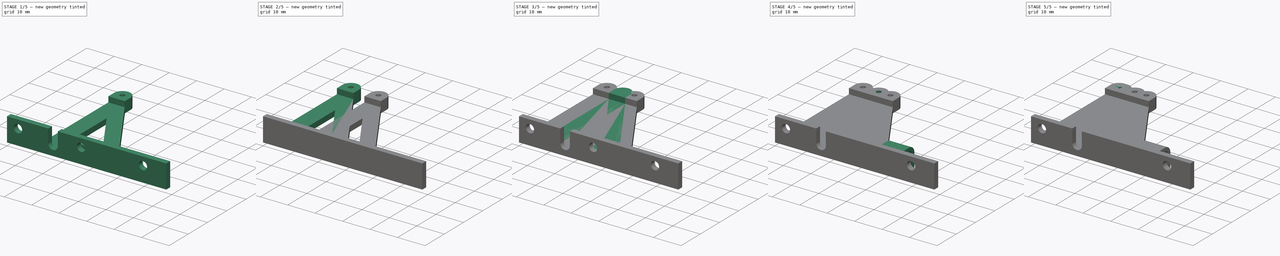
[diagram: build sequence overview — one tinted view per stage of 5, left to right]
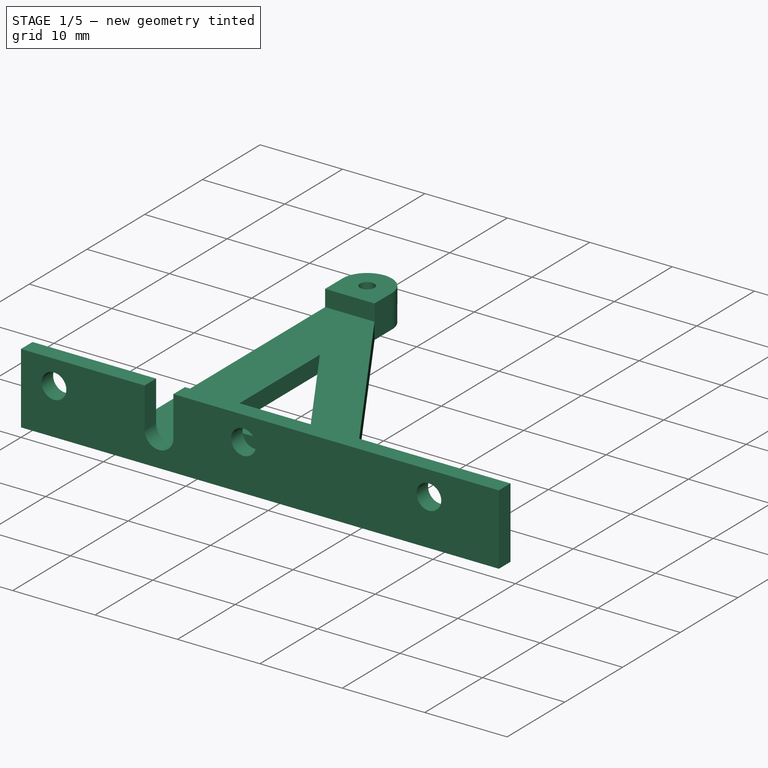
[diagram: stage 1 of 5 — iso view after this stage's code; geometry added in this stage tinted green]
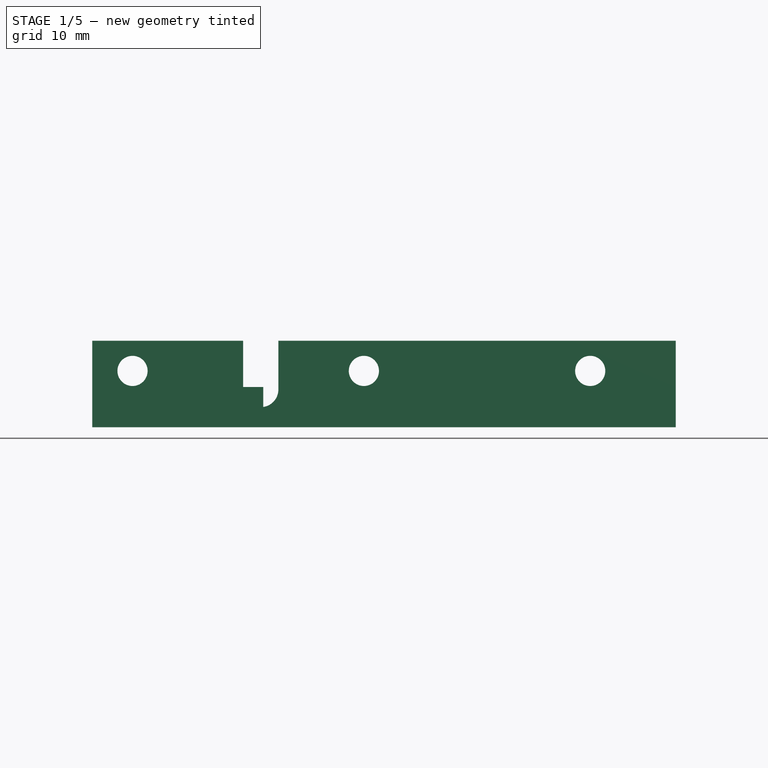
[diagram: stage 1 of 5 — front view after this stage's code; geometry added in this stage tinted green]
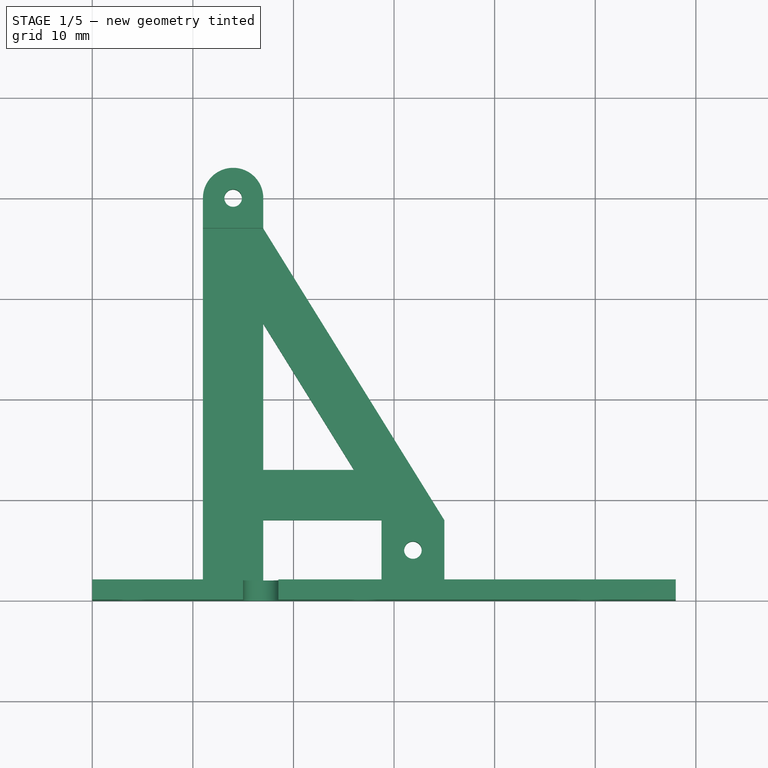
[diagram: stage 1 of 5 — top view after this stage's code; geometry added in this stage tinted green]
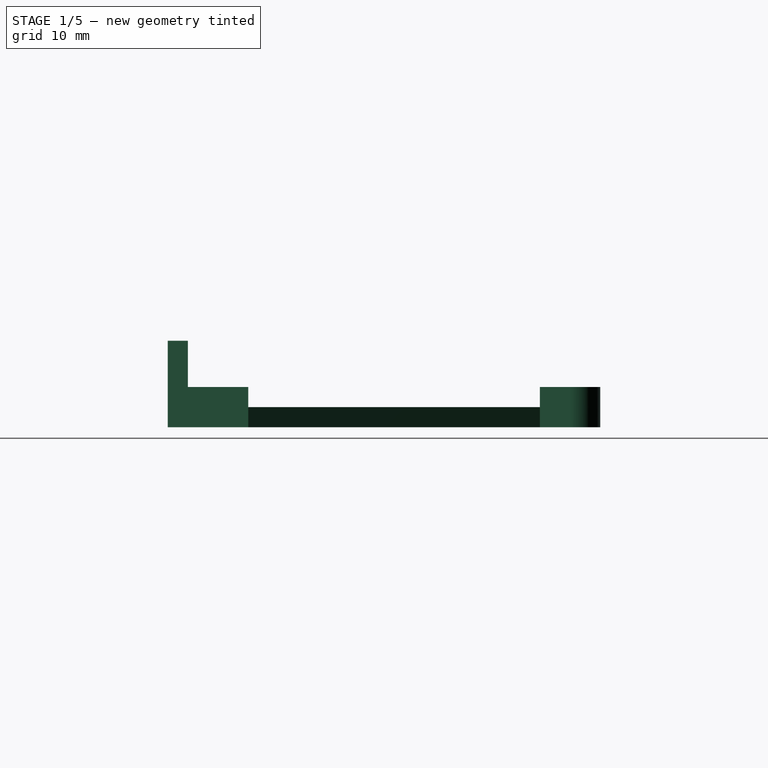
[diagram: stage 1 of 5 — right view after this stage's code; geometry added in this stage tinted green]
FCSTD DOCUMENT  (FreeCAD 1.0R39319 (Git))
Label: GameCubeFlippy
License: Creative Commons Attribution-NonCommercial-ShareAlike 4.0
LicenseURL: https://creativecommons.org/licenses/by-nc-sa/4.0/
objects: Sketcher::SketchObject×26, PartDesign::Pocket×17, PartDesign::Pad×13, PartDesign::ShapeBinder×4, PartDesign::Body×4
note: 150 computed .brp shape members not serialized (recipe doc carries the construction recipe); baked Part::Feature solids carry a one-line shape summary decoded from their .brp

FEATURE [PartDesign::Body] Body002  label="SD-Expander"
  AllowCompound = false
  Group = -> [Sketch014,Pad007,Sketch015,Pad008,ShapeBinder002,Pocket009,Sketch016,Pocket010,Sketch017,Pad009,Sketch018,Pocket011,Sketch019,Pocket012,Sketch020,Pocket013]
  Origin = -> Origin004
  Tip = -> Pocket013
FEATURE [Sketcher::SketchObject] Sketch021
  ArcFitTolerance = 1e-06
  AttachmentSupport = -> [XY_Plane003]
  FullyConstrained = true
  MakeInternals = false
  MapMode = 5
  sketch-geometry (23):
    g0: LineSegment StartX=0 StartY=0 StartZ=0 EndX=0 EndY=2 EndZ=0
    g1: LineSegment StartX=0 StartY=0 StartZ=0 EndX=58 EndY=0 EndZ=0
    g2: LineSegment StartX=0 StartY=2 StartZ=0 EndX=11 EndY=2 EndZ=0
    g3: LineSegment StartX=11 StartY=2 StartZ=0 EndX=11 EndY=43 EndZ=0
    g4: LineSegment StartX=11 StartY=43 StartZ=0 EndX=17 EndY=43 EndZ=0
    g5: LineSegment StartX=17 StartY=43 StartZ=0 EndX=17 EndY=37 EndZ=0
    g6: LineSegment [constr] StartX=11 StartY=2 StartZ=0 EndX=17 EndY=2 EndZ=0
    g7: LineSegment StartX=17 StartY=2 StartZ=0 EndX=28.75 EndY=2 EndZ=0
    g8: LineSegment [constr] StartX=28.75 StartY=2 StartZ=0 EndX=35 EndY=2 EndZ=0
    g9: LineSegment StartX=35 StartY=2 StartZ=0 EndX=35 EndY=8 EndZ=0
    g10: LineSegment StartX=35 StartY=8 StartZ=0 EndX=17 EndY=37 EndZ=0
    g11: LineSegment [constr] StartX=35 StartY=8 StartZ=0 EndX=28.75 EndY=8 EndZ=0
    g12: LineSegment StartX=28.75 StartY=8 StartZ=0 EndX=28.75 EndY=2 EndZ=0
    g13: LineSegment StartX=28.75 StartY=8 StartZ=0 EndX=17 EndY=8 EndZ=0
    g14: LineSegment StartX=17 StartY=8 StartZ=0 EndX=17 EndY=2 EndZ=0
    g15: LineSegment StartX=17 StartY=13 StartZ=0 EndX=17 EndY=27.5189 EndZ=0
    g16: LineSegment StartX=17 StartY=27.5189 StartZ=0 EndX=26.0117 EndY=13 EndZ=0
    g17: LineSegment StartX=26.0117 StartY=13 StartZ=0 EndX=17 EndY=13 EndZ=0
    g18: LineSegment [constr] StartX=17 StartY=13 StartZ=0 EndX=17 EndY=8 EndZ=0
    g19: LineSegment StartX=35 StartY=2 StartZ=0 EndX=58 EndY=2 EndZ=0
    g20: LineSegment StartX=58 StartY=2 StartZ=0 EndX=58 EndY=0 EndZ=0
    g21: LineSegment [constr] StartX=26.0117 StartY=13 StartZ=0 EndX=30.2599 EndY=15.6368 EndZ=0
    g22: LineSegment [constr] StartX=17 StartY=27.5189 StartZ=0 EndX=21.2482 EndY=30.1557 EndZ=0
  constraints (64):
    c: Distance(g0) = 2
    c: Coincident(g0,g-1)
    c: PointOnObject(g0,g-2)
    c: Distance(g1) = 58
    c: Coincident(g1,g0)
    c: PointOnObject(g1,g-1)
    c: Distance(g2) = 11
    c: Coincident(g2,g0)
    c: Horizontal(g2)
    c: Distance(g3) = 41
    c: Coincident(g3,g2)
    c: Vertical(g3)
    c: Distance(g4) = 6
    c: Coincident(g4,g3)
    c: Horizontal(g4)
    c: Distance(g5) = 6
    c: Coincident(g5,g4)
    c: Vertical(g5)
    c: Distance(g6) = 6
    c: Coincident(g6,g2)
    c: Horizontal(g6)
    c: Distance(g7) = 11.75
    c: Coincident(g7,g6)
    c: Horizontal(g7)
    c: Distance(g8) = 6.25
    c: Coincident(g8,g7)
    c: Horizontal(g8)
    c: Distance(g9) = 6
    c: Coincident(g9,g8)
    c: Vertical(g9)
    c: Coincident(g10,g9)
    c: Coincident(g10,g5)
    c: Coincident(g11,g9)
    c: Horizontal(g11)
    c: Coincident(g12,g11)
    c: Coincident(g12,g7)
    c: Vertical(g12)
    c: Coincident(g13,g11)
    c: Horizontal(g13)
    c: Coincident(g14,g13)
    c: Coincident(g14,g6)
    c: Vertical(g14)
    c: Vertical(g15)
    c: Coincident(g16,g15)
    c: Coincident(g17,g16)
    c: Coincident(g17,g15)
    c: Horizontal(g17)
    c: Coincident(g18,g15)
    c: Coincident(g18,g13)
    c: Vertical(g18)
    c: Coincident(g19,g8)
    c: Horizontal(g19)
    c: Coincident(g20,g19)
    c: Coincident(g20,g1)
    c: Vertical(g20)
    c: Distance(g18) = 5
    c: Coincident(g21,g16)
    c: PointOnObject(g21,g10)
    c: Perpendicular(g21,g10)
    c: Perpendicular(g21,g16)
    c: Coincident(g22,g15)
    c: PointOnObject(g22,g10)
    c: Perpendicular(g10,g22)
    c: Distance(g22) = 5
FEATURE [PartDesign::Pad] Pad010
  Direction = (0,0,1)
  Length = 2
  Length2 = 10
  Profile = -> Sketch021
  ReferenceAxis = -> Sketch021 [N_Axis]
  Refine = true
  Suppressed = false
  Type = 0
FEATURE [Sketcher::SketchObject] Sketch022
  ArcFitTolerance = 1e-06
  AttachmentSupport = -> [Pad010]
  ExternalGeometry = -> [Pad010]
  FullyConstrained = true
  MakeInternals = false
  MapMode = 5
  Placement = pos=(0,0,2) rot=(0,0,1;0rad)
  sketch-geometry (8):
    g0: LineSegment StartX=17 StartY=37 StartZ=0 EndX=11 EndY=37 EndZ=0
    g1: LineSegment StartX=11 StartY=37 StartZ=0 EndX=11 EndY=40 EndZ=0
    g2: LineSegment StartX=17 StartY=37 StartZ=0 EndX=17 EndY=40 EndZ=0
    g3: ArcOfCircle CenterX=14 CenterY=40 CenterZ=0 NormalX=0 NormalY=0 NormalZ=1 AngleXU=0 Radius=3 StartAngle=-1.24381e-11 EndAngle=3.1416
    g4: LineSegment StartX=28.75 StartY=8 StartZ=0 EndX=28.75 EndY=2 EndZ=0
    g5: LineSegment StartX=28.75 StartY=2 StartZ=0 EndX=35 EndY=2 EndZ=0
    g6: LineSegment StartX=35 StartY=2 StartZ=0 EndX=35 EndY=8 EndZ=0
    g7: LineSegment StartX=35 StartY=8 StartZ=0 EndX=28.75 EndY=8 EndZ=0
  constraints (20):
    c: Coincident(g0,g-4)
    c: PointOnObject(g0,g-3)
    c: Horizontal(g0)
    c: Coincident(g1,g0)
    c: PointOnObject(g1,g-3)
    c: Coincident(g2,g0)
    c: PointOnObject(g2,g-4)
    c: Coincident(g3,g1)
    c: Symmetric(g-3,g0,g3)
    c: Tangent(g3,g2) = -1.5708
    c: Coincident(g4,g5)
    c: Coincident(g5,g6)
    c: Coincident(g6,g7)
    c: Coincident(g7,g4)
    c: Vertical(g4)
    c: Vertical(g6)
    c: Horizontal(g5)
    c: Horizontal(g7)
    c: Coincident(g4,g-5)
    c: Coincident(g5,g-6)
FEATURE [PartDesign::Pad] Pad011
  BaseFeature = -> Pad010
  Direction = (0,0,1)
  Length = 2
  Length2 = 10
  Profile = -> Sketch022
  ReferenceAxis = -> Sketch022 [N_Axis]
  Refine = true
  Suppressed = false
  Type = 0
FEATURE [PartDesign::ShapeBinder] ShapeBinder003
  Support = -> [Pad011]
  TraceSupport = false
FEATURE [PartDesign::Pocket] Pocket014
  BaseFeature = -> Pad011
  Direction = (0,0,-1)
  Length = 5
  Length2 = 5
  Profile = -> ShapeBinder003
  Refine = true
  Suppressed = false
  Type = 1
FEATURE [Sketcher::SketchObject] Sketch023
  ArcFitTolerance = 1e-06
  AttachmentSupport = -> [Pocket014]
  ExternalGeometry = -> [Pocket014]
  FullyConstrained = true
  MakeInternals = false
  MapMode = 5
  Placement = pos=(0,0,4) rot=(0,0,1;0rad)
  sketch-geometry (2):
    g0: Circle CenterX=14 CenterY=40 CenterZ=0 NormalX=0 NormalY=0 NormalZ=1 AngleXU=0 Radius=0.875
    g1: Circle CenterX=31.875 CenterY=5 CenterZ=0 NormalX=0 NormalY=0 NormalZ=1 AngleXU=0 Radius=0.875
  constraints (4):
    c: Coincident(g0,g-3)
    c: Symmetric(g-4,g-5,g1)
    c: Equal(g0,g1)
    c: Diameter(g1) = 1.75
FEATURE [PartDesign::Pocket] Pocket015
  BaseFeature = -> Pocket014
  Direction = (0,0,-1)
  Length = 5
  Length2 = 5
  Profile = -> Sketch023
  ReferenceAxis = -> Sketch023 [N_Axis]
  Refine = true
  Suppressed = false
  Type = 1
FEATURE [Sketcher::SketchObject] Sketch024
  ArcFitTolerance = 1e-06
  AttachmentSupport = -> [Pocket015]
  ExternalGeometry = -> [Pocket015]
  FullyConstrained = true
  MakeInternals = false
  MapMode = 5
  Placement = pos=(0,0,2) rot=(0,0,1;0rad)
  sketch-geometry (4):
    g0: LineSegment StartX=58 StartY=2 StartZ=0 EndX=0 EndY=2 EndZ=0
    g1: LineSegment StartX=0 StartY=2 StartZ=0 EndX=0 EndY=0 EndZ=0
    g2: LineSegment StartX=0 StartY=0 StartZ=0 EndX=58 EndY=0 EndZ=0
    g3: LineSegment StartX=58 StartY=0 StartZ=0 EndX=58 EndY=2 EndZ=0
  constraints (10):
    c: Coincident(g0,g1)
    c: Coincident(g1,g2)
    c: Coincident(g2,g3)
    c: Coincident(g3,g0)
    c: Horizontal(g0)
    c: Horizontal(g2)
    c: Vertical(g1)
    c: Vertical(g3)
    c: Coincident(g1,g-1)
    c: Coincident(g0,g-3)
FEATURE [PartDesign::Pad] Pad012
  BaseFeature = -> Pocket015
  Direction = (0,0,1)
  Length = 6.6
  Length2 = 10
  Profile = -> Sketch024
  ReferenceAxis = -> Sketch024 [N_Axis]
  Refine = true
  Suppressed = false
  Type = 0
FEATURE [Sketcher::SketchObject] Sketch025
  ArcFitTolerance = 1e-06
  AttachmentSupport = -> [Pad012]
  ExternalGeometry = -> [Pad012]
  FullyConstrained = true
  MakeInternals = false
  MapMode = 5
  Placement = pos=(0,0,0) rot=(1,0,0;1.5708rad)
  sketch-geometry (15):
    g0: LineSegment [constr] StartX=4 StartY=8.6 StartZ=0 EndX=4 EndY=5.6 EndZ=0
    g1: LineSegment [constr] StartX=4 StartY=5.6 StartZ=0 EndX=0 EndY=5.6 EndZ=0
    g2: Circle CenterX=4 CenterY=5.6 CenterZ=0 NormalX=0 NormalY=0 NormalZ=1 AngleXU=0 Radius=1.5
    g3: LineSegment [constr] StartX=0 StartY=8.6 StartZ=0 EndX=15 EndY=8.6 EndZ=0
    g4: LineSegment StartX=15 StartY=8.6 StartZ=0 EndX=18.5 EndY=8.6 EndZ=0
    g5: LineSegment StartX=15 StartY=8.6 StartZ=0 EndX=15 EndY=3.75 EndZ=0
    g6: LineSegment StartX=18.5 StartY=8.6 StartZ=0 EndX=18.5 EndY=3.75 EndZ=0
    g7: ArcOfCircle CenterX=16.75 CenterY=3.75 CenterZ=0 NormalX=0 NormalY=0 NormalZ=1 AngleXU=0 Radius=1.75 StartAngle=3.14159 EndAngle=6.28319
    g8: LineSegment [constr] StartX=16.75 StartY=2 StartZ=0 EndX=16.75 EndY=0 EndZ=0
    g9: LineSegment [constr] StartX=0 StartY=0 StartZ=0 EndX=58 EndY=0 EndZ=0
    g10: LineSegment [constr] StartX=4 StartY=5.6 StartZ=0 EndX=49.5 EndY=5.6 EndZ=0
    g11: LineSegment [constr] StartX=49.5 StartY=5.6 StartZ=0 EndX=58 EndY=5.6 EndZ=0
    g12: Circle CenterX=49.5 CenterY=5.6 CenterZ=0 NormalX=0 NormalY=0 NormalZ=1 AngleXU=0 Radius=1.5
    g13: LineSegment [constr] StartX=4 StartY=5.6 StartZ=0 EndX=27 EndY=5.6 EndZ=0
    g14: Circle CenterX=27 CenterY=5.6 CenterZ=0 NormalX=0 NormalY=0 NormalZ=1 AngleXU=0 Radius=1.5
  constraints (41):
    c: Distance(g0) = 3
    c: Vertical(g0)
    c: Coincident(g1,g0)
    c: PointOnObject(g1,g-3)
    c: Horizontal(g1)
    c: Distance(g1) = 4
    c: Coincident(g2,g0)
    c: Diameter(g2) = 3
    c: Coincident(g3,g-3)
    c: Distance(g4) = 3.5
    c: Coincident(g4,g3)
    c: Coincident(g5,g3)
    c: Vertical(g5)
    c: Coincident(g6,g4)
    c: Vertical(g6)
    c: Tangent(g7,g5) = -1.5708
    c: Tangent(g7,g6) = 1.5708
    c: PointOnObject(g8,g7)
    c: Vertical(g8)
    c: Coincident(g9,g-1)
    c: Coincident(g9,g-4)
    c: PointOnObject(g8,g9)
    c: Perpendicular(g7,g8)
    c: Distance(g8) = 2
    c: Distance(g3) = 15
    c: PointOnObject(g0,g3)
    c: Horizontal(g3)
    c: Horizontal(g4)
    c: Coincident(g10,g0)
    c: Horizontal(g10)
    c: Distance(g11) = 8.5
    c: Coincident(g11,g10)
    c: PointOnObject(g11,g-4)
    c: Horizontal(g11)
    c: Coincident(g12,g10)
    c: Equal(g12,g2)
    c: Distance(g13) = 23
    c: Coincident(g13,g0)
    c: PointOnObject(g13,g10)
    c: Coincident(g14,g13)
    c: Equal(g14,g2)
FEATURE [PartDesign::Pocket] Pocket016
  BaseFeature = -> Pad012
  Direction = (0,1,-2e-16)
  Length = 5
  Length2 = 5
  Profile = -> Sketch025
  ReferenceAxis = -> Sketch025 [N_Axis]
  Refine = true
  Suppressed = false
  Type = 0
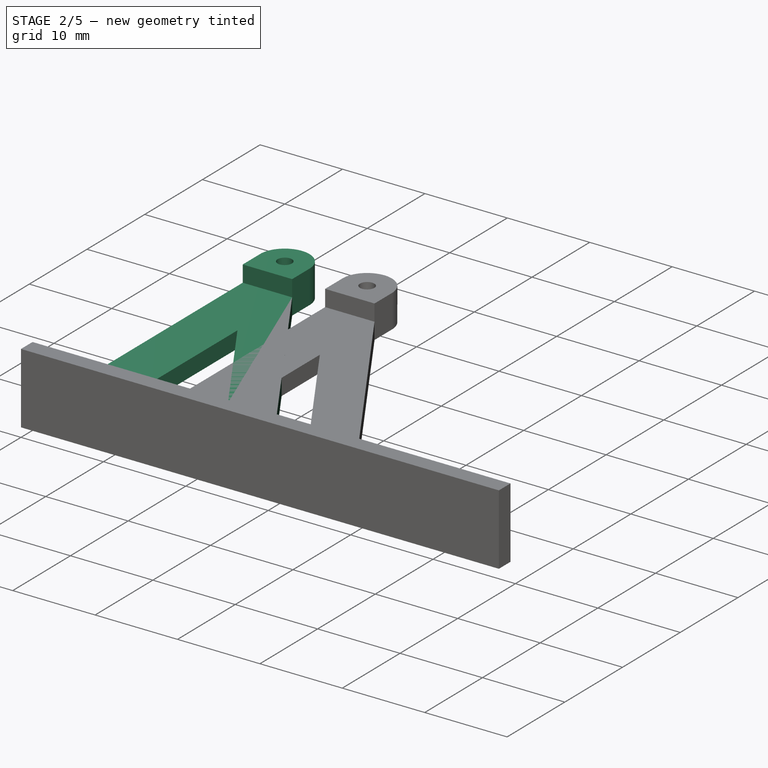
[diagram: stage 2 of 5 — iso view after this stage's code; geometry added in this stage tinted green]
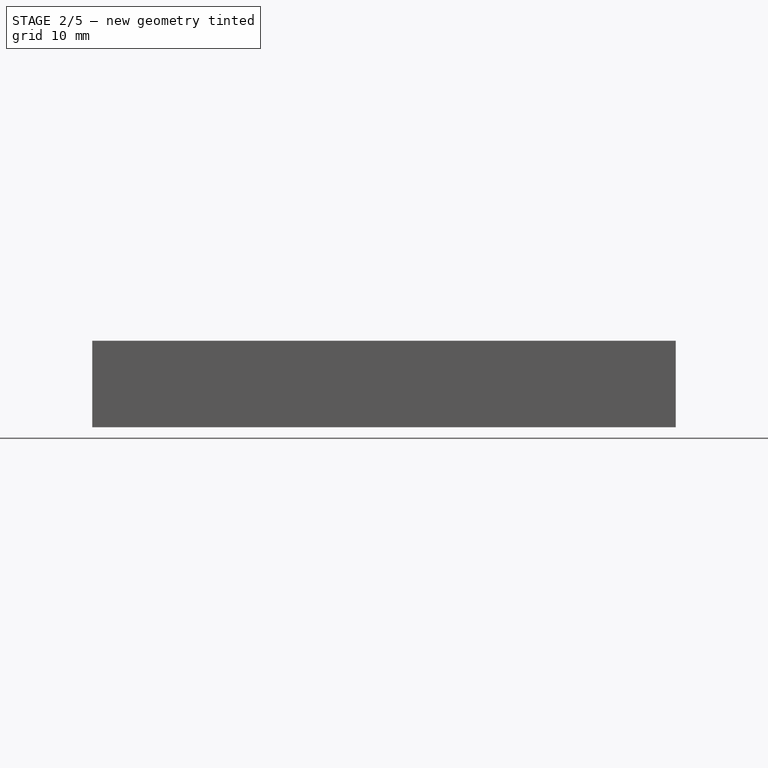
[diagram: stage 2 of 5 — front view after this stage's code; geometry added in this stage tinted green]
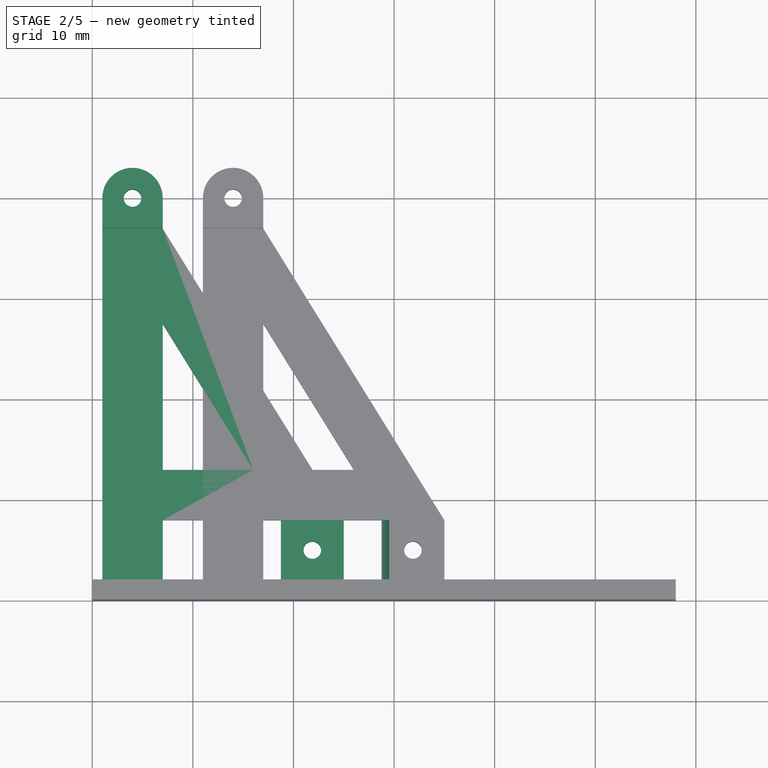
[diagram: stage 2 of 5 — top view after this stage's code; geometry added in this stage tinted green]
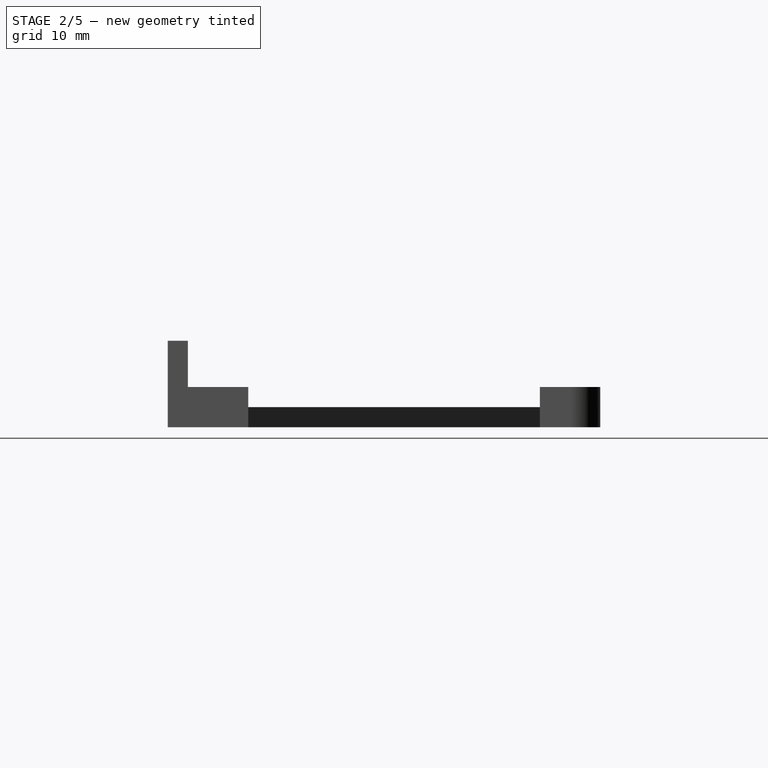
[diagram: stage 2 of 5 — right view after this stage's code; geometry added in this stage tinted green]
FEATURE [PartDesign::Body] Body  label="Original"
  AllowCompound = false
  Group = -> [Sketch,Pad,Sketch001,Pad001,ShapeBinder,Pocket,Sketch002,Pocket001,Sketch003,Pad002,Sketch004,Pocket002,Sketch012,Pad006,Sketch013,Pocket008]
  Origin = -> Origin
  Tip = -> Pocket008
FEATURE [Sketcher::SketchObject] Sketch014
  ArcFitTolerance = 1e-06
  AttachmentSupport = -> [XY_Plane002]
  FullyConstrained = true
  MakeInternals = false
  MapMode = 5
  sketch-geometry (23):
    g0: LineSegment StartX=0 StartY=0 StartZ=0 EndX=0 EndY=2 EndZ=0
    g1: LineSegment StartX=0 StartY=0 StartZ=0 EndX=58 EndY=0 EndZ=0
    g2: LineSegment StartX=0 StartY=2 StartZ=0 EndX=1 EndY=2 EndZ=0
    g3: LineSegment StartX=1 StartY=2 StartZ=0 EndX=1 EndY=43 EndZ=0
    g4: LineSegment StartX=1 StartY=43 StartZ=0 EndX=7 EndY=43 EndZ=0
    g5: LineSegment StartX=7 StartY=43 StartZ=0 EndX=7 EndY=37 EndZ=0
    g6: LineSegment [constr] StartX=1 StartY=2 StartZ=0 EndX=7 EndY=2 EndZ=0
    g7: LineSegment StartX=7 StartY=2 StartZ=0 EndX=18.75 EndY=2 EndZ=0
    g8: LineSegment [constr] StartX=18.75 StartY=2 StartZ=0 EndX=25 EndY=2 EndZ=0
    g9: LineSegment StartX=25 StartY=2 StartZ=0 EndX=25 EndY=8 EndZ=0
    g10: LineSegment StartX=25 StartY=8 StartZ=0 EndX=7 EndY=37 EndZ=0
    g11: LineSegment [constr] StartX=25 StartY=8 StartZ=0 EndX=18.75 EndY=8 EndZ=0
    g12: LineSegment StartX=18.75 StartY=8 StartZ=0 EndX=18.75 EndY=2 EndZ=0
    g13: LineSegment StartX=18.75 StartY=8 StartZ=0 EndX=7 EndY=8 EndZ=0
    g14: LineSegment StartX=7 StartY=8 StartZ=0 EndX=7 EndY=2 EndZ=0
    g15: LineSegment StartX=7 StartY=13 StartZ=0 EndX=7 EndY=27.5189 EndZ=0
    g16: LineSegment StartX=7 StartY=27.5189 StartZ=0 EndX=16.0117 EndY=13 EndZ=0
    g17: LineSegment StartX=16.0117 StartY=13 StartZ=0 EndX=7 EndY=13 EndZ=0
    g18: LineSegment [constr] StartX=7 StartY=13 StartZ=0 EndX=7 EndY=8 EndZ=0
    g19: LineSegment StartX=25 StartY=2 StartZ=0 EndX=58 EndY=2 EndZ=0
    g20: LineSegment StartX=58 StartY=2 StartZ=0 EndX=58 EndY=0 EndZ=0
    g21: LineSegment [constr] StartX=16.0117 StartY=13 StartZ=0 EndX=20.2599 EndY=15.6368 EndZ=0
    g22: LineSegment [constr] StartX=7 StartY=27.5189 StartZ=0 EndX=11.2482 EndY=30.1557 EndZ=0
  constraints (64):
    c: Distance(g0) = 2
    c: Coincident(g0,g-1)
    c: PointOnObject(g0,g-2)
    c: Distance(g1) = 58
    c: Coincident(g1,g0)
    c: PointOnObject(g1,g-1)
    c: Distance(g2) = 1
    c: Coincident(g2,g0)
    c: Horizontal(g2)
    c: Distance(g3) = 41
    c: Coincident(g3,g2)
    c: Vertical(g3)
    c: Distance(g4) = 6
    c: Coincident(g4,g3)
    c: Horizontal(g4)
    c: Distance(g5) = 6
    c: Coincident(g5,g4)
    c: Vertical(g5)
    c: Distance(g6) = 6
    c: Coincident(g6,g2)
    c: Horizontal(g6)
    c: Distance(g7) = 11.75
    c: Coincident(g7,g6)
    c: Horizontal(g7)
    c: Distance(g8) = 6.25
    c: Coincident(g8,g7)
    c: Horizontal(g8)
    c: Distance(g9) = 6
    c: Coincident(g9,g8)
    c: Vertical(g9)
    c: Coincident(g10,g9)
    c: Coincident(g10,g5)
    c: Coincident(g11,g9)
    c: Horizontal(g11)
    c: Coincident(g12,g11)
    c: Coincident(g12,g7)
    c: Vertical(g12)
    c: Coincident(g13,g11)
    c: Horizontal(g13)
    c: Coincident(g14,g13)
    c: Coincident(g14,g6)
    c: Vertical(g14)
    c: Vertical(g15)
    c: Coincident(g16,g15)
    c: Coincident(g17,g16)
    c: Coincident(g17,g15)
    c: Horizontal(g17)
    c: Coincident(g18,g15)
    c: Coincident(g18,g13)
    c: Vertical(g18)
    c: Coincident(g19,g8)
    c: Horizontal(g19)
    c: Coincident(g20,g19)
    c: Coincident(g20,g1)
    c: Vertical(g20)
    c: Distance(g18) = 5
    c: Coincident(g21,g16)
    c: PointOnObject(g21,g10)
    c: Perpendicular(g21,g10)
    c: Perpendicular(g21,g16)
    c: Coincident(g22,g15)
    c: PointOnObject(g22,g10)
    c: Perpendicular(g10,g22)
    c: Distance(g22) = 5
FEATURE [PartDesign::Pad] Pad007
  Direction = (0,0,1)
  Length = 2
  Length2 = 10
  Profile = -> Sketch014
  ReferenceAxis = -> Sketch014 [N_Axis]
  Refine = true
  Suppressed = false
  Type = 0
FEATURE [Sketcher::SketchObject] Sketch015
  ArcFitTolerance = 1e-06
  AttachmentSupport = -> [Pad007]
  ExternalGeometry = -> [Pad007]
  FullyConstrained = true
  MakeInternals = false
  MapMode = 5
  Placement = pos=(0,0,2) rot=(0,0,1;0rad)
  sketch-geometry (8):
    g0: LineSegment StartX=7 StartY=37 StartZ=0 EndX=1 EndY=37 EndZ=0
    g1: LineSegment StartX=1 StartY=37 StartZ=0 EndX=1 EndY=40 EndZ=0
    g2: LineSegment StartX=7 StartY=37 StartZ=0 EndX=7 EndY=40 EndZ=0
    g3: ArcOfCircle CenterX=4 CenterY=40 CenterZ=0 NormalX=0 NormalY=0 NormalZ=1 AngleXU=0 Radius=3 StartAngle=1.9e-15 EndAngle=3.14159
    g4: LineSegment StartX=18.75 StartY=8 StartZ=0 EndX=18.75 EndY=2 EndZ=0
    g5: LineSegment StartX=18.75 StartY=2 StartZ=0 EndX=25 EndY=2 EndZ=0
    g6: LineSegment StartX=25 StartY=2 StartZ=0 EndX=25 EndY=8 EndZ=0
    g7: LineSegment StartX=25 StartY=8 StartZ=0 EndX=18.75 EndY=8 EndZ=0
  constraints (20):
    c: Coincident(g0,g-4)
    c: PointOnObject(g0,g-3)
    c: Horizontal(g0)
    c: Coincident(g1,g0)
    c: PointOnObject(g1,g-3)
    c: Coincident(g2,g0)
    c: PointOnObject(g2,g-4)
    c: Coincident(g3,g1)
    c: Symmetric(g-3,g0,g3)
    c: Tangent(g3,g2) = -1.5708
    c: Coincident(g4,g5)
    c: Coincident(g5,g6)
    c: Coincident(g6,g7)
    c: Coincident(g7,g4)
    c: Vertical(g4)
    c: Vertical(g6)
    c: Horizontal(g5)
    c: Horizontal(g7)
    c: Coincident(g4,g-5)
    c: Coincident(g5,g-6)
FEATURE [PartDesign::Pad] Pad008
  BaseFeature = -> Pad007
  Direction = (0,0,1)
  Length = 2
  Length2 = 10
  Profile = -> Sketch015
  ReferenceAxis = -> Sketch015 [N_Axis]
  Refine = true
  Suppressed = false
  Type = 0
FEATURE [PartDesign::ShapeBinder] ShapeBinder002
  Support = -> [Pad008]
  TraceSupport = false
FEATURE [PartDesign::Pocket] Pocket009
  BaseFeature = -> Pad008
  Direction = (0,0,-1)
  Length = 5
  Length2 = 5
  Profile = -> ShapeBinder002
  Refine = true
  Suppressed = false
  Type = 1
FEATURE [Sketcher::SketchObject] Sketch016
  ArcFitTolerance = 1e-06
  AttachmentSupport = -> [Pocket009]
  ExternalGeometry = -> [Pocket009]
  FullyConstrained = true
  MakeInternals = false
  MapMode = 5
  Placement = pos=(0,0,4) rot=(0,0,1;0rad)
  sketch-geometry (2):
    g0: Circle CenterX=4 CenterY=40 CenterZ=0 NormalX=0 NormalY=0 NormalZ=1 AngleXU=0 Radius=0.875
    g1: Circle CenterX=21.875 CenterY=5 CenterZ=0 NormalX=0 NormalY=0 NormalZ=1 AngleXU=0 Radius=0.875
  constraints (4):
    c: Coincident(g0,g-3)
    c: Symmetric(g-4,g-5,g1)
    c: Equal(g0,g1)
    c: Diameter(g1) = 1.75
FEATURE [PartDesign::Pocket] Pocket010
  BaseFeature = -> Pocket009
  Direction = (0,0,-1)
  Length = 5
  Length2 = 5
  Profile = -> Sketch016
  ReferenceAxis = -> Sketch016 [N_Axis]
  Refine = true
  Suppressed = false
  Type = 1
FEATURE [Sketcher::SketchObject] Sketch017
  ArcFitTolerance = 1e-06
  AttachmentSupport = -> [Pocket010]
  ExternalGeometry = -> [Pocket010]
  FullyConstrained = true
  MakeInternals = false
  MapMode = 5
  Placement = pos=(0,0,2) rot=(0,0,1;0rad)
  sketch-geometry (4):
    g0: LineSegment StartX=58 StartY=2 StartZ=0 EndX=0 EndY=2 EndZ=0
    g1: LineSegment StartX=0 StartY=2 StartZ=0 EndX=0 EndY=0 EndZ=0
    g2: LineSegment StartX=0 StartY=0 StartZ=0 EndX=58 EndY=0 EndZ=0
    g3: LineSegment StartX=58 StartY=0 StartZ=0 EndX=58 EndY=2 EndZ=0
  constraints (10):
    c: Coincident(g0,g1)
    c: Coincident(g1,g2)
    c: Coincident(g2,g3)
    c: Coincident(g3,g0)
    c: Horizontal(g0)
    c: Horizontal(g2)
    c: Vertical(g1)
    c: Vertical(g3)
    c: Coincident(g1,g-1)
    c: Coincident(g0,g-3)
FEATURE [PartDesign::Pad] Pad009
  BaseFeature = -> Pocket010
  Direction = (0,0,1)
  Length = 6.6
  Length2 = 10
  Profile = -> Sketch017
  ReferenceAxis = -> Sketch017 [N_Axis]
  Refine = true
  Suppressed = false
  Type = 0
FEATURE [Sketcher::SketchObject] Sketch026
  ArcFitTolerance = 1e-06
  AttachmentSupport = -> [Pocket016]
  ExternalGeometry = -> [Pocket016]
  FullyConstrained = true
  MakeInternals = false
  MapMode = 5
  Placement = pos=(0,2,0) rot=(0,0.707107,0.707107;3.14159rad)
  sketch-geometry (1):
    g0: Circle CenterX=-27 CenterY=5.6 CenterZ=0 NormalX=0 NormalY=0 NormalZ=1 AngleXU=0 Radius=3
  constraints (2):
    c: Coincident(g0,g-3)
    c: Diameter(g0) = 6
FEATURE [PartDesign::Pocket] Pocket017
  BaseFeature = -> Pocket016
  Direction = (0,-1,2e-16)
  Length = 5
  Length2 = 5
  Profile = -> Sketch026
  ReferenceAxis = -> Sketch026 [N_Axis]
  Refine = true
  Reversed = true
  Suppressed = false
  Type = 1
FEATURE [PartDesign::Body] Body003  label="SD IO"
  AllowCompound = false
  Group = -> [Sketch021,Pad010,Sketch022,Pad011,ShapeBinder003,Pocket014,Sketch023,Pocket015,Sketch024,Pad012,Sketch025,Pocket016,Sketch026,Pocket017]
  Origin = -> Origin005
  Tip = -> Pocket017
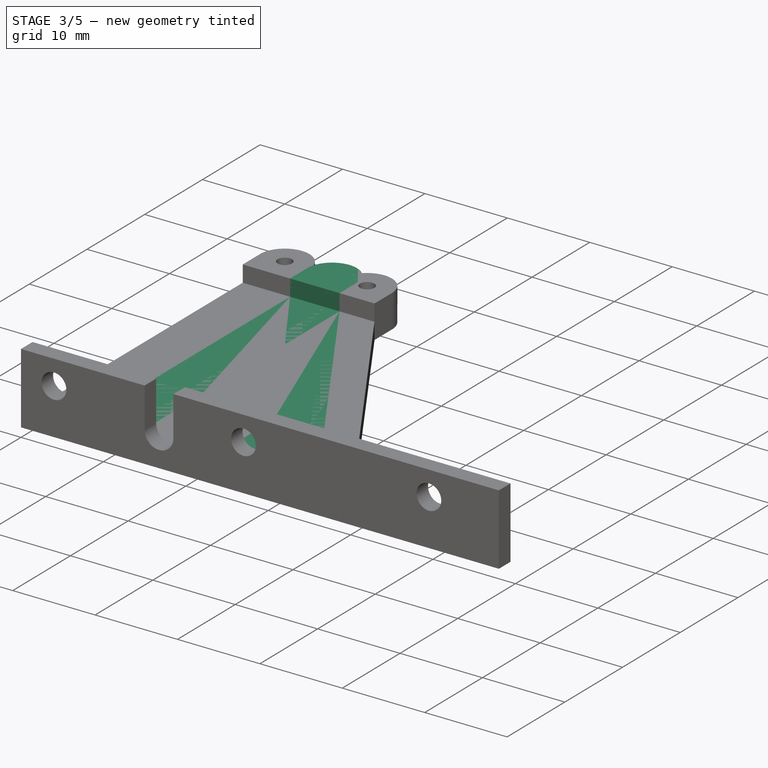
[diagram: stage 3 of 5 — iso view after this stage's code; geometry added in this stage tinted green]
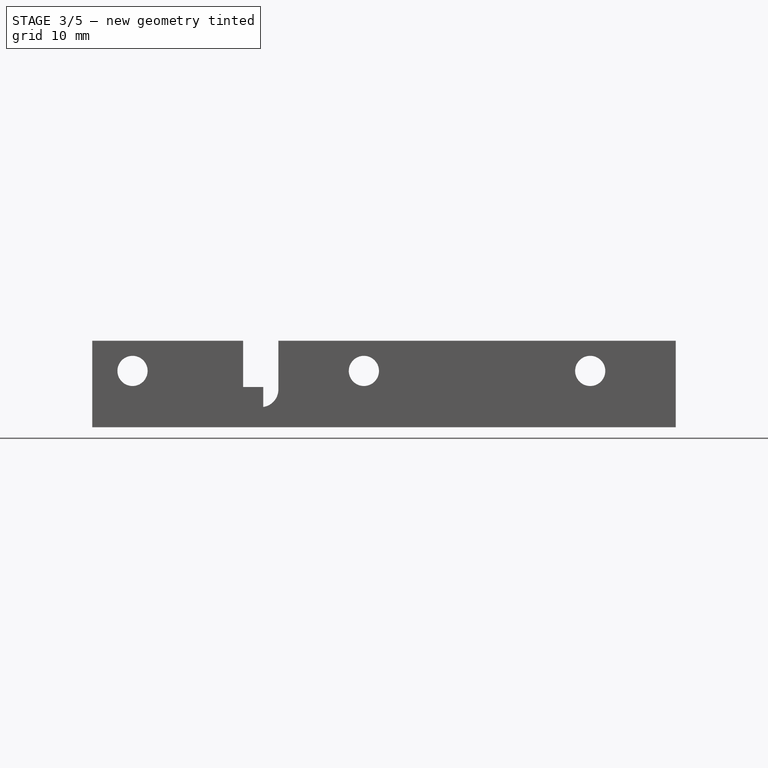
[diagram: stage 3 of 5 — front view after this stage's code; geometry added in this stage tinted green]
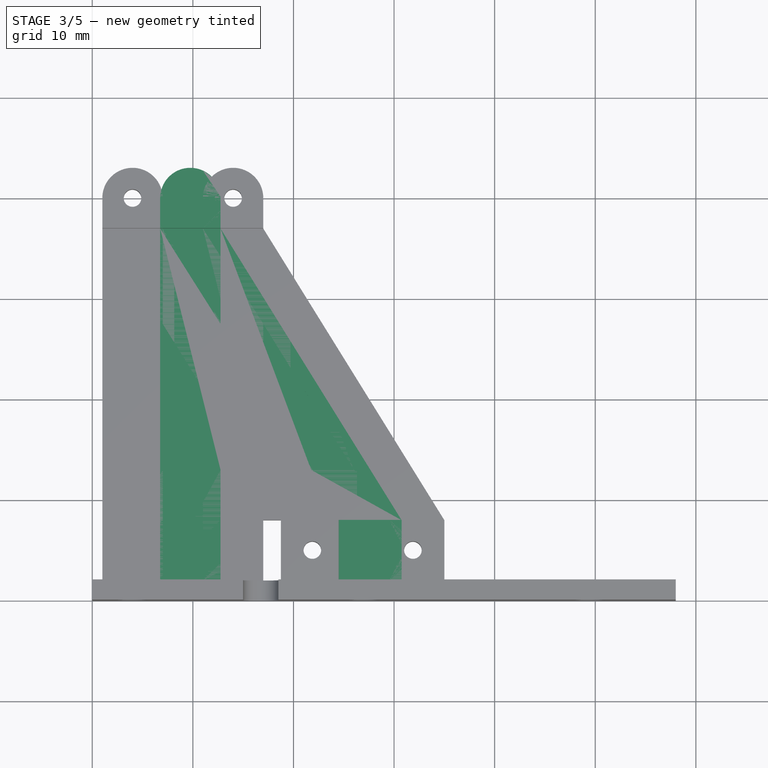
[diagram: stage 3 of 5 — top view after this stage's code; geometry added in this stage tinted green]
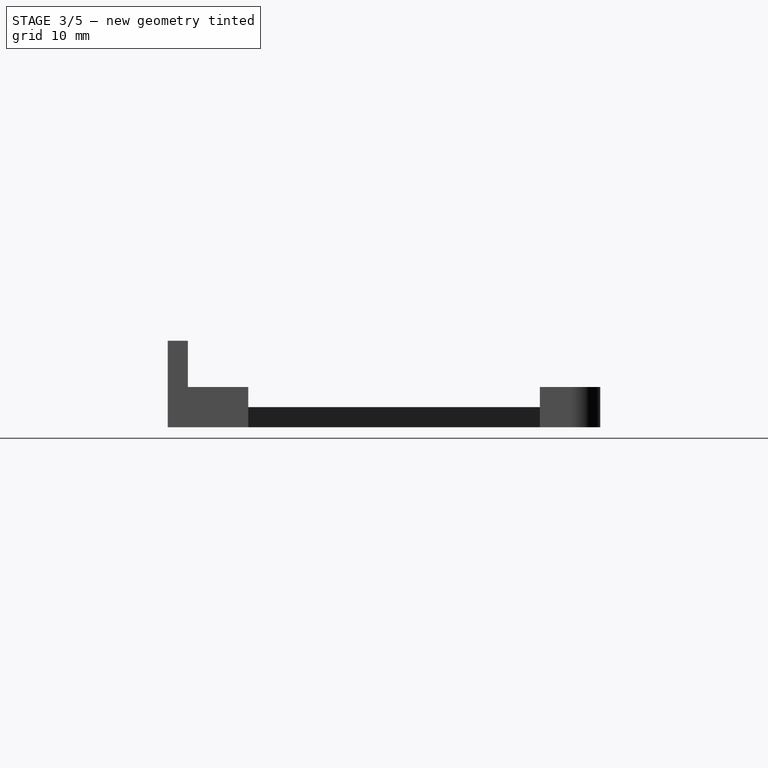
[diagram: stage 3 of 5 — right view after this stage's code; geometry added in this stage tinted green]
FEATURE [Sketcher::SketchObject] Sketch
  ArcFitTolerance = 1e-06
  AttachmentSupport = -> [XY_Plane]
  FullyConstrained = true
  MakeInternals = false
  MapMode = 5
  sketch-geometry (23):
    g0: LineSegment StartX=0 StartY=0 StartZ=0 EndX=0 EndY=2 EndZ=0
    g1: LineSegment StartX=0 StartY=0 StartZ=0 EndX=58 EndY=0 EndZ=0
    g2: LineSegment StartX=0 StartY=2 StartZ=0 EndX=6.75 EndY=2 EndZ=0
    g3: LineSegment StartX=6.75 StartY=2 StartZ=0 EndX=6.75 EndY=43 EndZ=0
    g4: LineSegment StartX=6.75 StartY=43 StartZ=0 EndX=12.75 EndY=43 EndZ=0
    g5: LineSegment StartX=12.75 StartY=43 StartZ=0 EndX=12.75 EndY=37 EndZ=0
    g6: LineSegment [constr] StartX=6.75 StartY=2 StartZ=0 EndX=12.75 EndY=2 EndZ=0
    g7: LineSegment StartX=12.75 StartY=2 StartZ=0 EndX=24.5 EndY=2 EndZ=0
    g8: LineSegment [constr] StartX=24.5 StartY=2 StartZ=0 EndX=30.75 EndY=2 EndZ=0
    g9: LineSegment StartX=30.75 StartY=2 StartZ=0 EndX=30.75 EndY=8 EndZ=0
    g10: LineSegment StartX=30.75 StartY=8 StartZ=0 EndX=12.75 EndY=37 EndZ=0
    g11: LineSegment [constr] StartX=30.75 StartY=8 StartZ=0 EndX=24.5 EndY=8 EndZ=0
    g12: LineSegment StartX=24.5 StartY=8 StartZ=0 EndX=24.5 EndY=2 EndZ=0
    g13: LineSegment StartX=24.5 StartY=8 StartZ=0 EndX=12.75 EndY=8 EndZ=0
    g14: LineSegment StartX=12.75 StartY=8 StartZ=0 EndX=12.75 EndY=2 EndZ=0
    g15: LineSegment StartX=12.75 StartY=13 StartZ=0 EndX=12.75 EndY=27.5189 EndZ=0
    g16: LineSegment StartX=12.75 StartY=27.5189 StartZ=0 EndX=21.7617 EndY=13 EndZ=0
    g17: LineSegment StartX=21.7617 StartY=13 StartZ=0 EndX=12.75 EndY=13 EndZ=0
    g18: LineSegment [constr] StartX=12.75 StartY=13 StartZ=0 EndX=12.75 EndY=8 EndZ=0
    g19: LineSegment StartX=30.75 StartY=2 StartZ=0 EndX=58 EndY=2 EndZ=0
    g20: LineSegment StartX=58 StartY=2 StartZ=0 EndX=58 EndY=0 EndZ=0
    g21: LineSegment [constr] StartX=21.7617 StartY=13 StartZ=0 EndX=26.0099 EndY=15.6368 EndZ=0
    g22: LineSegment [constr] StartX=12.75 StartY=27.5189 StartZ=0 EndX=16.9982 EndY=30.1557 EndZ=0
  constraints (64):
    c: Distance(g0) = 2
    c: Coincident(g0,g-1)
    c: PointOnObject(g0,g-2)
    c: Distance(g1) = 58
    c: Coincident(g1,g0)
    c: PointOnObject(g1,g-1)
    c: Distance(g2) = 6.75
    c: Coincident(g2,g0)
    c: Horizontal(g2)
    c: Distance(g3) = 41
    c: Coincident(g3,g2)
    c: Vertical(g3)
    c: Distance(g4) = 6
    c: Coincident(g4,g3)
    c: Horizontal(g4)
    c: Distance(g5) = 6
    c: Coincident(g5,g4)
    c: Vertical(g5)
    c: Distance(g6) = 6
    c: Coincident(g6,g2)
    c: Horizontal(g6)
    c: Distance(g7) = 11.75
    c: Coincident(g7,g6)
    c: Horizontal(g7)
    c: Distance(g8) = 6.25
    c: Coincident(g8,g7)
    c: Horizontal(g8)
    c: Distance(g9) = 6
    c: Coincident(g9,g8)
    c: Vertical(g9)
    c: Coincident(g10,g9)
    c: Coincident(g10,g5)
    c: Coincident(g11,g9)
    c: Horizontal(g11)
    c: Coincident(g12,g11)
    c: Coincident(g12,g7)
    c: Vertical(g12)
    c: Coincident(g13,g11)
    c: Horizontal(g13)
    c: Coincident(g14,g13)
    c: Coincident(g14,g6)
    c: Vertical(g14)
    c: Vertical(g15)
    c: Coincident(g16,g15)
    c: Coincident(g17,g16)
    c: Coincident(g17,g15)
    c: Horizontal(g17)
    c: Coincident(g18,g15)
    c: Coincident(g18,g13)
    c: Vertical(g18)
    c: Coincident(g19,g8)
    c: Horizontal(g19)
    c: Coincident(g20,g19)
    c: Coincident(g20,g1)
    c: Vertical(g20)
    c: Distance(g18) = 5
    c: Coincident(g21,g16)
    c: PointOnObject(g21,g10)
    c: Perpendicular(g21,g10)
    c: Perpendicular(g21,g16)
    c: Coincident(g22,g15)
    c: PointOnObject(g22,g10)
    c: Perpendicular(g10,g22)
    c: Distance(g22) = 5
FEATURE [PartDesign::Pad] Pad
  Direction = (0,0,1)
  Length = 2
  Length2 = 10
  Profile = -> Sketch
  ReferenceAxis = -> Sketch [N_Axis]
  Refine = true
  Suppressed = false
  Type = 0
FEATURE [Sketcher::SketchObject] Sketch001
  ArcFitTolerance = 1e-06
  AttachmentSupport = -> [Pad]
  ExternalGeometry = -> [Pad]
  FullyConstrained = true
  MakeInternals = false
  MapMode = 5
  Placement = pos=(0,0,2) rot=(0,0,1;0rad)
  sketch-geometry (8):
    g0: LineSegment StartX=12.75 StartY=37 StartZ=0 EndX=6.75 EndY=37 EndZ=0
    g1: LineSegment StartX=6.75 StartY=37 StartZ=0 EndX=6.75 EndY=40 EndZ=0
    g2: LineSegment StartX=12.75 StartY=37 StartZ=0 EndX=12.75 EndY=40 EndZ=0
    g3: ArcOfCircle CenterX=9.75 CenterY=40 CenterZ=0 NormalX=0 NormalY=0 NormalZ=1 AngleXU=0 Radius=3 StartAngle=3.8e-15 EndAngle=3.1416
    g4: LineSegment StartX=24.5 StartY=8 StartZ=0 EndX=24.5 EndY=2 EndZ=0
    g5: LineSegment StartX=24.5 StartY=2 StartZ=0 EndX=30.75 EndY=2 EndZ=0
    g6: LineSegment StartX=30.75 StartY=2 StartZ=0 EndX=30.75 EndY=8 EndZ=0
    g7: LineSegment StartX=30.75 StartY=8 StartZ=0 EndX=24.5 EndY=8 EndZ=0
  constraints (20):
    c: Coincident(g0,g-4)
    c: PointOnObject(g0,g-3)
    c: Horizontal(g0)
    c: Coincident(g1,g0)
    c: PointOnObject(g1,g-3)
    c: Coincident(g2,g0)
    c: PointOnObject(g2,g-4)
    c: Coincident(g3,g1)
    c: Symmetric(g-3,g0,g3)
    c: Tangent(g3,g2) = -1.5708
    c: Coincident(g4,g5)
    c: Coincident(g5,g6)
    c: Coincident(g6,g7)
    c: Coincident(g7,g4)
    c: Vertical(g4)
    c: Vertical(g6)
    c: Horizontal(g5)
    c: Horizontal(g7)
    c: Coincident(g4,g-5)
    c: Coincident(g5,g-6)
FEATURE [PartDesign::Pad] Pad001
  BaseFeature = -> Pad
  Direction = (0,0,1)
  Length = 2
  Length2 = 10
  Profile = -> Sketch001
  ReferenceAxis = -> Sketch001 [N_Axis]
  Refine = true
  Suppressed = false
  Type = 0
FEATURE [PartDesign::ShapeBinder] ShapeBinder
  Support = -> [Pad001]
  TraceSupport = false
FEATURE [PartDesign::Pocket] Pocket
  BaseFeature = -> Pad001
  Direction = (0,0,-1)
  Length = 5
  Length2 = 5
  Profile = -> ShapeBinder
  Refine = true
  Suppressed = false
  Type = 1
FEATURE [Sketcher::SketchObject] Sketch018
  ArcFitTolerance = 1e-06
  AttachmentSupport = -> [Pad009]
  ExternalGeometry = -> [Pad009]
  FullyConstrained = true
  MakeInternals = false
  MapMode = 5
  Placement = pos=(0,0,0) rot=(1,0,0;1.5708rad)
  sketch-geometry (15):
    g0: LineSegment [constr] StartX=4 StartY=8.6 StartZ=0 EndX=4 EndY=5.6 EndZ=0
    g1: LineSegment [constr] StartX=4 StartY=5.6 StartZ=0 EndX=0 EndY=5.6 EndZ=0
    g2: Circle CenterX=4 CenterY=5.6 CenterZ=0 NormalX=0 NormalY=0 NormalZ=1 AngleXU=0 Radius=1.5
    g3: LineSegment [constr] StartX=0 StartY=8.6 StartZ=0 EndX=15 EndY=8.6 EndZ=0
    g4: LineSegment StartX=15 StartY=8.6 StartZ=0 EndX=18.5 EndY=8.6 EndZ=0
    g5: LineSegment StartX=15 StartY=8.6 StartZ=0 EndX=15 EndY=3.75 EndZ=0
    g6: LineSegment StartX=18.5 StartY=8.6 StartZ=0 EndX=18.5 EndY=3.75 EndZ=0
    g7: ArcOfCircle CenterX=16.75 CenterY=3.75 CenterZ=0 NormalX=0 NormalY=0 NormalZ=1 AngleXU=0 Radius=1.75 StartAngle=3.14159 EndAngle=6.28319
    g8: LineSegment [constr] StartX=16.75 StartY=2 StartZ=0 EndX=16.75 EndY=0 EndZ=0
    g9: LineSegment [constr] StartX=0 StartY=0 StartZ=0 EndX=58 EndY=0 EndZ=0
    g10: LineSegment [constr] StartX=4 StartY=5.6 StartZ=0 EndX=49.5 EndY=5.6 EndZ=0
    g11: LineSegment [constr] StartX=49.5 StartY=5.6 StartZ=0 EndX=58 EndY=5.6 EndZ=0
    g12: Circle CenterX=49.5 CenterY=5.6 CenterZ=0 NormalX=0 NormalY=0 NormalZ=1 AngleXU=0 Radius=1.5
    g13: LineSegment [constr] StartX=4 StartY=5.6 StartZ=0 EndX=27 EndY=5.6 EndZ=0
    g14: Circle CenterX=27 CenterY=5.6 CenterZ=0 NormalX=0 NormalY=0 NormalZ=1 AngleXU=0 Radius=1.5
  constraints (41):
    c: Distance(g0) = 3
    c: Vertical(g0)
    c: Coincident(g1,g0)
    c: PointOnObject(g1,g-3)
    c: Horizontal(g1)
    c: Distance(g1) = 4
    c: Coincident(g2,g0)
    c: Diameter(g2) = 3
    c: Coincident(g3,g-3)
    c: Distance(g4) = 3.5
    c: Coincident(g4,g3)
    c: Coincident(g5,g3)
    c: Vertical(g5)
    c: Coincident(g6,g4)
    c: Vertical(g6)
    c: Tangent(g7,g5) = -1.5708
    c: Tangent(g7,g6) = 1.5708
    c: PointOnObject(g8,g7)
    c: Vertical(g8)
    c: Coincident(g9,g-1)
    c: Coincident(g9,g-4)
    c: PointOnObject(g8,g9)
    c: Perpendicular(g7,g8)
    c: Distance(g8) = 2
    c: Distance(g3) = 15
    c: PointOnObject(g0,g3)
    c: Horizontal(g3)
    c: Horizontal(g4)
    c: Coincident(g10,g0)
    c: Horizontal(g10)
    c: Distance(g11) = 8.5
    c: Coincident(g11,g10)
    c: PointOnObject(g11,g-4)
    c: Horizontal(g11)
    c: Coincident(g12,g10)
    c: Equal(g12,g2)
    c: Distance(g13) = 23
    c: Coincident(g13,g0)
    c: PointOnObject(g13,g10)
    c: Coincident(g14,g13)
    c: Equal(g14,g2)
FEATURE [PartDesign::Pocket] Pocket011
  BaseFeature = -> Pad009
  Direction = (0,1,-2e-16)
  Length = 5
  Length2 = 5
  Profile = -> Sketch018
  ReferenceAxis = -> Sketch018 [N_Axis]
  Refine = true
  Suppressed = false
  Type = 1
FEATURE [Sketcher::SketchObject] Sketch019
  ArcFitTolerance = 1e-06
  AttachmentSupport = -> [Pocket011]
  ExternalGeometry = -> [Pocket011]
  FullyConstrained = true
  MakeInternals = false
  MapMode = 5
  Placement = pos=(0,2,0) rot=(0,0.707107,0.707107;3.14159rad)
  sketch-geometry (1):
    g0: Circle CenterX=-27 CenterY=5.6 CenterZ=0 NormalX=0 NormalY=0 NormalZ=1 AngleXU=0 Radius=3
  constraints (2):
    c: Coincident(g0,g-3)
    c: Diameter(g0) = 6
FEATURE [PartDesign::Pocket] Pocket012
  BaseFeature = -> Pocket011
  Direction = (0,-1,2e-16)
  Length = 5
  Length2 = 5
  Profile = -> Sketch019
  ReferenceAxis = -> Sketch019 [N_Axis]
  Refine = true
  Reversed = true
  Suppressed = false
  Type = 1
FEATURE [Sketcher::SketchObject] Sketch020
  ArcFitTolerance = 1e-06
  AttachmentSupport = -> [Pocket012]
  ExternalGeometry = -> [Pocket012]
  FullyConstrained = true
  MakeInternals = false
  MapMode = 5
  Placement = pos=(0,2,0) rot=(0,0.707107,0.707107;3.14159rad)
  sketch-geometry (4):
    g0: LineSegment StartX=-58 StartY=8.6 StartZ=0 EndX=-58 EndY=0 EndZ=0
    g1: LineSegment StartX=-58 StartY=0 StartZ=0 EndX=-33 EndY=0 EndZ=0
    g2: LineSegment StartX=-33 StartY=0 StartZ=0 EndX=-33 EndY=8.6 EndZ=0
    g3: LineSegment StartX=-33 StartY=8.6 StartZ=0 EndX=-58 EndY=8.6 EndZ=0
  constraints (11):
    c: Coincident(g0,g1)
    c: Coincident(g1,g2)
    c: Coincident(g2,g3)
    c: Coincident(g3,g0)
    c: Vertical(g0)
    c: Vertical(g2)
    c: Horizontal(g1)
    c: Horizontal(g3)
    c: Coincident(g0,g-3)
    c: PointOnObject(g1,g-1)
    c: Distance(g1) = 25
FEATURE [PartDesign::Pocket] Pocket013
  BaseFeature = -> Pocket012
  Direction = (0,-1,0)
  Length = 5
  Length2 = 5
  Profile = -> Sketch020
  ReferenceAxis = -> Sketch020 [N_Axis]
  Refine = true
  Suppressed = false
  Type = 1
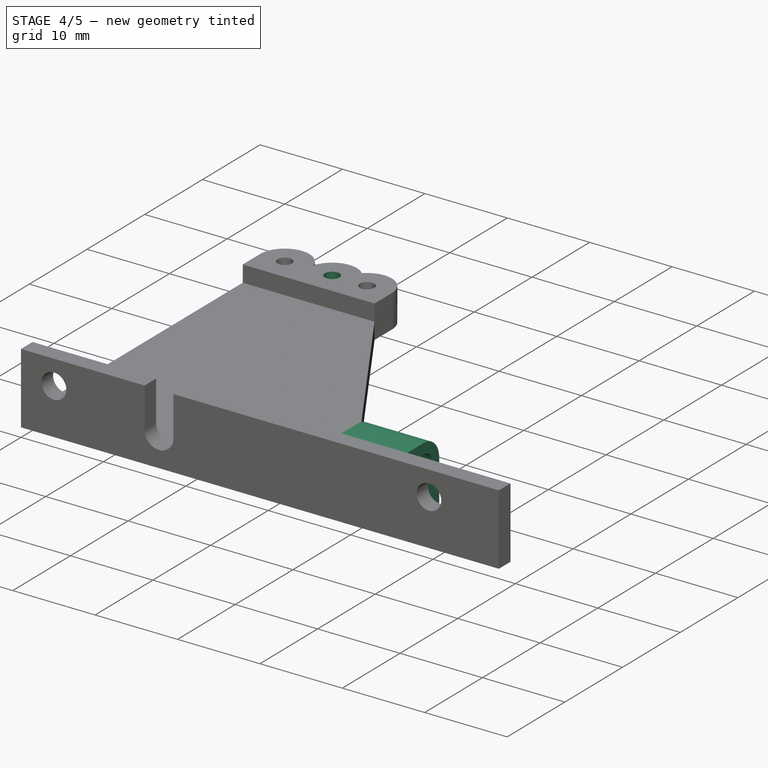
[diagram: stage 4 of 5 — iso view after this stage's code; geometry added in this stage tinted green]
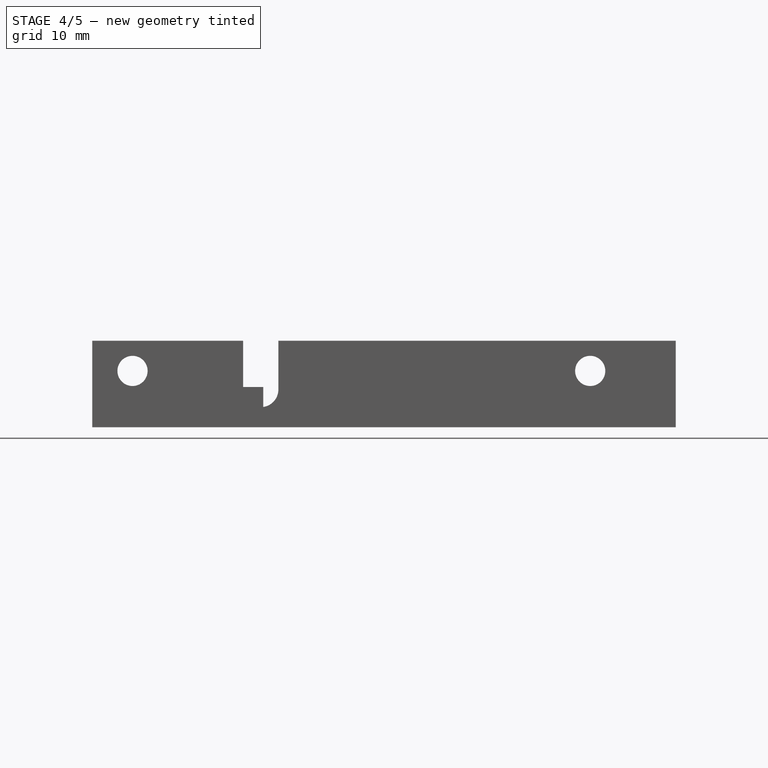
[diagram: stage 4 of 5 — front view after this stage's code; geometry added in this stage tinted green]
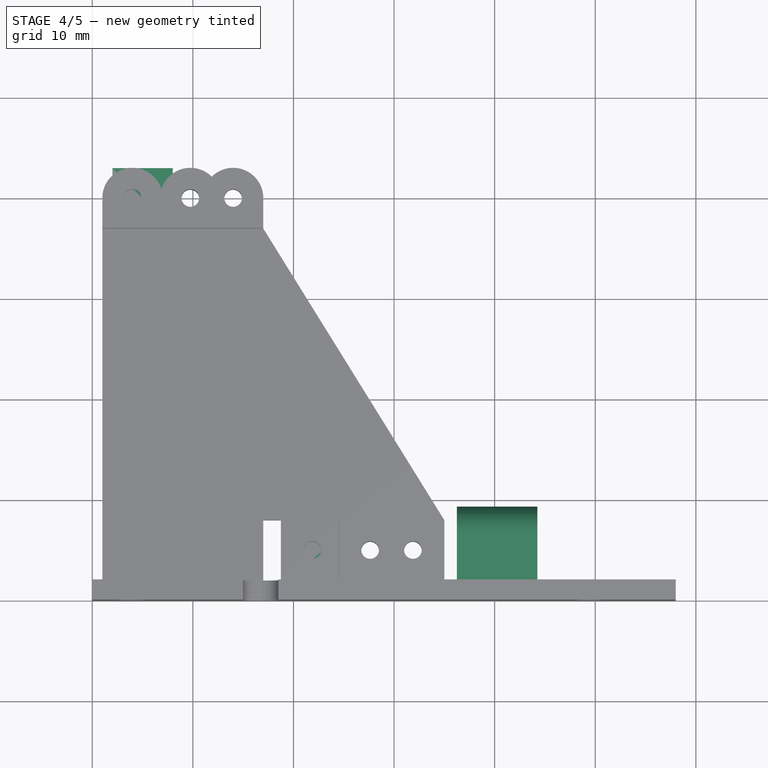
[diagram: stage 4 of 5 — top view after this stage's code; geometry added in this stage tinted green]
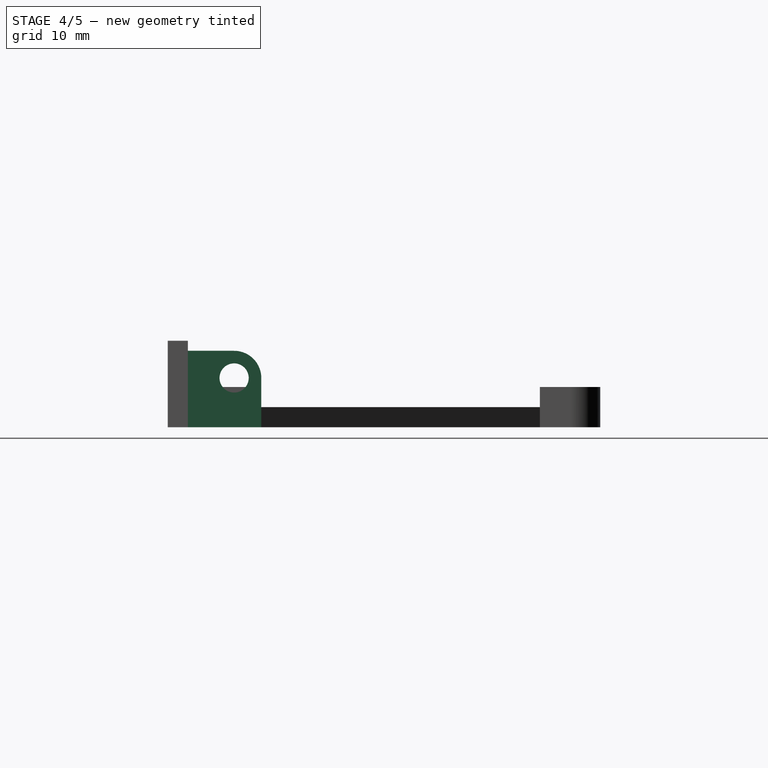
[diagram: stage 4 of 5 — right view after this stage's code; geometry added in this stage tinted green]
FEATURE [Sketcher::SketchObject] Sketch002
  ArcFitTolerance = 1e-06
  AttachmentSupport = -> [Pocket]
  ExternalGeometry = -> [Pocket]
  FullyConstrained = true
  MakeInternals = false
  MapMode = 5
  Placement = pos=(0,0,4) rot=(0,0,1;0rad)
  sketch-geometry (2):
    g0: Circle CenterX=9.75 CenterY=40 CenterZ=0 NormalX=0 NormalY=0 NormalZ=1 AngleXU=0 Radius=0.875
    g1: Circle CenterX=27.625 CenterY=5 CenterZ=0 NormalX=0 NormalY=0 NormalZ=1 AngleXU=0 Radius=0.875
  constraints (4):
    c: Coincident(g0,g-3)
    c: Symmetric(g-4,g-5,g1)
    c: Equal(g0,g1)
    c: Diameter(g1) = 1.75
FEATURE [PartDesign::Pocket] Pocket001
  BaseFeature = -> Pocket
  Direction = (0,0,-1)
  Length = 5
  Length2 = 5
  Profile = -> Sketch002
  ReferenceAxis = -> Sketch002 [N_Axis]
  Refine = true
  Suppressed = false
  Type = 1
FEATURE [Sketcher::SketchObject] Sketch003
  ArcFitTolerance = 1e-06
  AttachmentSupport = -> [Pocket001]
  ExternalGeometry = -> [Pocket001]
  FullyConstrained = true
  MakeInternals = false
  MapMode = 5
  Placement = pos=(0,0,2) rot=(0,0,1;0rad)
  sketch-geometry (4):
    g0: LineSegment StartX=58 StartY=2 StartZ=0 EndX=0 EndY=2 EndZ=0
    g1: LineSegment StartX=0 StartY=2 StartZ=0 EndX=0 EndY=0 EndZ=0
    g2: LineSegment StartX=0 StartY=0 StartZ=0 EndX=58 EndY=0 EndZ=0
    g3: LineSegment StartX=58 StartY=0 StartZ=0 EndX=58 EndY=2 EndZ=0
  constraints (10):
    c: Coincident(g0,g1)
    c: Coincident(g1,g2)
    c: Coincident(g2,g3)
    c: Coincident(g3,g0)
    c: Horizontal(g0)
    c: Horizontal(g2)
    c: Vertical(g1)
    c: Vertical(g3)
    c: Coincident(g1,g-1)
    c: Coincident(g0,g-3)
FEATURE [PartDesign::Pad] Pad002
  BaseFeature = -> Pocket001
  Direction = (0,0,1)
  Length = 6.6
  Length2 = 10
  Profile = -> Sketch003
  ReferenceAxis = -> Sketch003 [N_Axis]
  Refine = true
  Suppressed = false
  Type = 0
FEATURE [Sketcher::SketchObject] Sketch004
  ArcFitTolerance = 1e-06
  AttachmentSupport = -> [Pad002]
  ExternalGeometry = -> [Pad002]
  FullyConstrained = true
  MakeInternals = false
  MapMode = 5
  Placement = pos=(0,0,0) rot=(1,0,0;1.5708rad)
  sketch-geometry (15):
    g0: LineSegment [constr] StartX=4 StartY=8.6 StartZ=0 EndX=4 EndY=5.6 EndZ=0
    g1: LineSegment [constr] StartX=4 StartY=5.6 StartZ=0 EndX=0 EndY=5.6 EndZ=0
    g2: Circle CenterX=4 CenterY=5.6 CenterZ=0 NormalX=0 NormalY=0 NormalZ=1 AngleXU=0 Radius=1.5
    g3: LineSegment [constr] StartX=0 StartY=8.6 StartZ=0 EndX=15 EndY=8.6 EndZ=0
    g4: LineSegment StartX=15 StartY=8.6 StartZ=0 EndX=18.5 EndY=8.6 EndZ=0
    g5: LineSegment StartX=15 StartY=8.6 StartZ=0 EndX=15 EndY=3.75 EndZ=0
    g6: LineSegment StartX=18.5 StartY=8.6 StartZ=0 EndX=18.5 EndY=3.75 EndZ=0
    g7: ArcOfCircle CenterX=16.75 CenterY=3.75 CenterZ=0 NormalX=0 NormalY=0 NormalZ=1 AngleXU=0 Radius=1.75 StartAngle=3.14159 EndAngle=6.28319
    g8: LineSegment [constr] StartX=16.75 StartY=2 StartZ=0 EndX=16.75 EndY=0 EndZ=0
    g9: LineSegment [constr] StartX=0 StartY=0 StartZ=0 EndX=58 EndY=0 EndZ=0
    g10: LineSegment [constr] StartX=4 StartY=5.6 StartZ=0 EndX=49.5 EndY=5.6 EndZ=0
    g11: LineSegment [constr] StartX=49.5 StartY=5.6 StartZ=0 EndX=58 EndY=5.6 EndZ=0
    g12: Circle CenterX=49.5 CenterY=5.6 CenterZ=0 NormalX=0 NormalY=0 NormalZ=1 AngleXU=0 Radius=1.5
    g13: LineSegment [constr] StartX=4 StartY=5.6 StartZ=0 EndX=27 EndY=5.6 EndZ=0
    g14: Circle [constr] CenterX=27 CenterY=5.6 CenterZ=0 NormalX=0 NormalY=0 NormalZ=1 AngleXU=0 Radius=1.5
  constraints (41):
    c: Distance(g0) = 3
    c: Vertical(g0)
    c: Coincident(g1,g0)
    c: PointOnObject(g1,g-3)
    c: Horizontal(g1)
    c: Distance(g1) = 4
    c: Coincident(g2,g0)
    c: Diameter(g2) = 3
    c: Coincident(g3,g-3)
    c: Distance(g4) = 3.5
    c: Coincident(g4,g3)
    c: Coincident(g5,g3)
    c: Vertical(g5)
    c: Coincident(g6,g4)
    c: Vertical(g6)
    c: Tangent(g7,g5) = -1.5708
    c: Tangent(g7,g6) = 1.5708
    c: PointOnObject(g8,g7)
    c: Vertical(g8)
    c: Coincident(g9,g-1)
    c: Coincident(g9,g-4)
    c: PointOnObject(g8,g9)
    c: Perpendicular(g7,g8)
    c: Distance(g8) = 2
    c: Distance(g3) = 15
    c: PointOnObject(g0,g3)
    c: Horizontal(g3)
    c: Horizontal(g4)
    c: Coincident(g10,g0)
    c: Horizontal(g10)
    c: Distance(g11) = 8.5
    c: Coincident(g11,g10)
    c: PointOnObject(g11,g-4)
    c: Horizontal(g11)
    c: Coincident(g12,g10)
    c: Equal(g12,g2)
    c: Distance(g13) = 23
    c: Coincident(g13,g0)
    c: PointOnObject(g13,g10)
    c: Coincident(g14,g13)
    c: Equal(g14,g2)
FEATURE [PartDesign::Pocket] Pocket002
  BaseFeature = -> Pad002
  Direction = (0,1,-2e-16)
  Length = 5
  Length2 = 5
  Profile = -> Sketch004
  ReferenceAxis = -> Sketch004 [N_Axis]
  Refine = true
  Suppressed = false
  Type = 1
FEATURE [Sketcher::SketchObject] Sketch006
  ArcFitTolerance = 1e-06
  AttachmentSupport = -> [XY_Plane001]
  FullyConstrained = true
  MakeInternals = false
  MapMode = 5
  sketch-geometry (23):
    g0: LineSegment StartX=0 StartY=0 StartZ=0 EndX=0 EndY=2 EndZ=0
    g1: LineSegment StartX=0 StartY=0 StartZ=0 EndX=58 EndY=0 EndZ=0
    g2: LineSegment StartX=0 StartY=2 StartZ=0 EndX=2 EndY=2 EndZ=0
    g3: LineSegment StartX=2 StartY=2 StartZ=0 EndX=2 EndY=43 EndZ=0
    g4: LineSegment StartX=2 StartY=43 StartZ=0 EndX=8 EndY=43 EndZ=0
    g5: LineSegment StartX=8 StartY=43 StartZ=0 EndX=8 EndY=37 EndZ=0
    g6: LineSegment [constr] StartX=2 StartY=2 StartZ=0 EndX=8 EndY=2 EndZ=0
    g7: LineSegment StartX=8 StartY=2 StartZ=0 EndX=19.75 EndY=2 EndZ=0
    g8: LineSegment [constr] StartX=19.75 StartY=2 StartZ=0 EndX=26 EndY=2 EndZ=0
    g9: LineSegment StartX=26 StartY=2 StartZ=0 EndX=26 EndY=8 EndZ=0
    g10: LineSegment StartX=26 StartY=8 StartZ=0 EndX=8 EndY=37 EndZ=0
    g11: LineSegment [constr] StartX=26 StartY=8 StartZ=0 EndX=19.75 EndY=8 EndZ=0
    g12: LineSegment StartX=19.75 StartY=8 StartZ=0 EndX=19.75 EndY=2 EndZ=0
    g13: LineSegment StartX=19.75 StartY=8 StartZ=0 EndX=8 EndY=8 EndZ=0
    g14: LineSegment StartX=8 StartY=8 StartZ=0 EndX=8 EndY=2 EndZ=0
    g15: LineSegment StartX=8 StartY=13 StartZ=0 EndX=8 EndY=27.5189 EndZ=0
    g16: LineSegment StartX=8 StartY=27.5189 StartZ=0 EndX=17.0117 EndY=13 EndZ=0
    g17: LineSegment StartX=17.0117 StartY=13 StartZ=0 EndX=8 EndY=13 EndZ=0
    g18: LineSegment [constr] StartX=8 StartY=13 StartZ=0 EndX=8 EndY=8 EndZ=0
    g19: LineSegment StartX=26 StartY=2 StartZ=0 EndX=58 EndY=2 EndZ=0
    g20: LineSegment StartX=58 StartY=2 StartZ=0 EndX=58 EndY=0 EndZ=0
    g21: LineSegment [constr] StartX=17.0117 StartY=13 StartZ=0 EndX=21.2599 EndY=15.6368 EndZ=0
    g22: LineSegment [constr] StartX=8 StartY=27.5189 StartZ=0 EndX=12.2482 EndY=30.1557 EndZ=0
  constraints (64):
    c: Distance(g0) = 2
    c: Coincident(g0,g-1)
    c: PointOnObject(g0,g-2)
    c: Distance(g1) = 58
    c: Coincident(g1,g0)
    c: PointOnObject(g1,g-1)
    c: Distance(g2) = 2
    c: Coincident(g2,g0)
    c: Horizontal(g2)
    c: Distance(g3) = 41
    c: Coincident(g3,g2)
    c: Vertical(g3)
    c: Distance(g4) = 6
    c: Coincident(g4,g3)
    c: Horizontal(g4)
    c: Distance(g5) = 6
    c: Coincident(g5,g4)
    c: Vertical(g5)
    c: Distance(g6) = 6
    c: Coincident(g6,g2)
    c: Horizontal(g6)
    c: Distance(g7) = 11.75
    c: Coincident(g7,g6)
    c: Horizontal(g7)
    c: Distance(g8) = 6.25
    c: Coincident(g8,g7)
    c: Horizontal(g8)
    c: Distance(g9) = 6
    c: Coincident(g9,g8)
    c: Vertical(g9)
    c: Coincident(g10,g9)
    c: Coincident(g10,g5)
    c: Coincident(g11,g9)
    c: Horizontal(g11)
    c: Coincident(g12,g11)
    c: Coincident(g12,g7)
    c: Vertical(g12)
    c: Coincident(g13,g11)
    c: Horizontal(g13)
    c: Coincident(g14,g13)
    c: Coincident(g14,g6)
    c: Vertical(g14)
    c: Vertical(g15)
    c: Coincident(g16,g15)
    c: Coincident(g17,g16)
    c: Coincident(g17,g15)
    c: Horizontal(g17)
    c: Coincident(g18,g15)
    c: Coincident(g18,g13)
    c: Vertical(g18)
    c: Coincident(g19,g8)
    c: Horizontal(g19)
    c: Coincident(g20,g19)
    c: Coincident(g20,g1)
    c: Vertical(g20)
    c: Distance(g18) = 5
    c: Coincident(g21,g16)
    c: PointOnObject(g21,g10)
    c: Perpendicular(g21,g10)
    c: Perpendicular(g21,g16)
    c: Coincident(g22,g15)
    c: PointOnObject(g22,g10)
    c: Perpendicular(g10,g22)
    c: Distance(g22) = 5
FEATURE [PartDesign::Pad] Pad003
  Direction = (0,0,1)
  Length = 2
  Length2 = 10
  Profile = -> Sketch006
  ReferenceAxis = -> Sketch006 [N_Axis]
  Refine = true
  Suppressed = false
  Type = 0
FEATURE [PartDesign::Body] Body001  label="No Holder"
  AllowCompound = false
  Group = -> [Sketch006,Pad003,Sketch007,Pad004,ShapeBinder001,Pocket004,Sketch008,Pocket005,Sketch009,Pad005,Sketch010,Pocket006,Sketch011,Pocket007]
  Origin = -> Origin002
  Tip = -> Pocket007
FEATURE [Sketcher::SketchObject] Sketch012
  ArcFitTolerance = 1e-06
  AttachmentSupport = -> [Pocket002]
  ExternalGeometry = -> [Pocket002]
  FullyConstrained = true
  MakeInternals = false
  MapMode = 5
  Placement = pos=(0,2,0) rot=(0,0.707107,0.707107;3.14159rad)
  sketch-geometry (5):
    g0: LineSegment [constr] StartX=-30.75 StartY=1.3e-15 StartZ=0 EndX=-36.25 EndY=0 EndZ=0
    g1: LineSegment StartX=-36.25 StartY=0 StartZ=0 EndX=-36.25 EndY=7.6 EndZ=0
    g2: LineSegment StartX=-36.25 StartY=7.6 StartZ=0 EndX=-44.25 EndY=7.6 EndZ=0
    g3: LineSegment StartX=-44.25 StartY=7.6 StartZ=0 EndX=-44.25 EndY=0 EndZ=0
    g4: LineSegment StartX=-44.25 StartY=0 StartZ=0 EndX=-36.25 EndY=0 EndZ=0
  constraints (14):
    c: Coincident(g0,g-3)
    c: PointOnObject(g0,g-1)
    c: Coincident(g1,g2)
    c: Coincident(g2,g3)
    c: Coincident(g3,g4)
    c: Coincident(g4,g1)
    c: Vertical(g1)
    c: Vertical(g3)
    c: Horizontal(g2)
    c: Horizontal(g4)
    c: Coincident(g1,g0)
    c: Distance(g0) = 5.5
    c: Distance(g2) = 8
    c: Distance(g1) = 7.6
FEATURE [PartDesign::Pad] Pad006
  BaseFeature = -> Pocket002
  Direction = (0,1,0)
  Length = 7.3
  Length2 = 10
  Profile = -> Sketch012
  ReferenceAxis = -> Sketch012 [N_Axis]
  Refine = true
  Suppressed = false
  Type = 0
FEATURE [Sketcher::SketchObject] Sketch013
  ArcFitTolerance = 1e-06
  AttachmentSupport = -> [Pad006]
  ExternalGeometry = -> [Pad006]
  FullyConstrained = true
  MakeInternals = false
  MapMode = 5
  Placement = pos=(36.25,0,0) rot=(0.57735,-0.57735,-0.57735;2.0944rad)
  sketch-geometry (5):
    g0: Circle [constr] CenterX=-6.6 CenterY=4.9 CenterZ=0 NormalX=0 NormalY=0 NormalZ=1 AngleXU=0 Radius=2.7
    g1: Circle CenterX=-6.6 CenterY=4.9 CenterZ=0 NormalX=0 NormalY=0 NormalZ=1 AngleXU=0 Radius=1.45
    g2: ArcOfCircle CenterX=-6.6 CenterY=4.9 CenterZ=0 NormalX=0 NormalY=0 NormalZ=1 AngleXU=0 Radius=2.7 StartAngle=1.5708 EndAngle=3.14159
    g3: LineSegment StartX=-9.3 StartY=4.9 StartZ=0 EndX=-9.3 EndY=7.6 EndZ=0
    g4: LineSegment StartX=-9.3 StartY=7.6 StartZ=0 EndX=-6.6 EndY=7.6 EndZ=0
  constraints (13):
    c: Tangent(g0,g-4)
    c: Tangent(g0,g-3)
    c: Diameter(g0) = 5.4
    c: Coincident(g1,g0)
    c: PointOnObject(g2,g0)
    c: Coincident(g2,g0)
    c: PointOnObject(g2,g-4)
    c: PointOnObject(g2,g-3)
    c: Coincident(g3,g2)
    c: Coincident(g3,g-4)
    c: Coincident(g4,g3)
    c: Coincident(g4,g2)
    c: Diameter(g1) = 2.9
FEATURE [PartDesign::Pocket] Pocket008
  BaseFeature = -> Pad006
  Direction = (1,0,0)
  Length = 5
  Length2 = 5
  Profile = -> Sketch013
  ReferenceAxis = -> Sketch013 [N_Axis]
  Refine = true
  Suppressed = false
  Type = 1
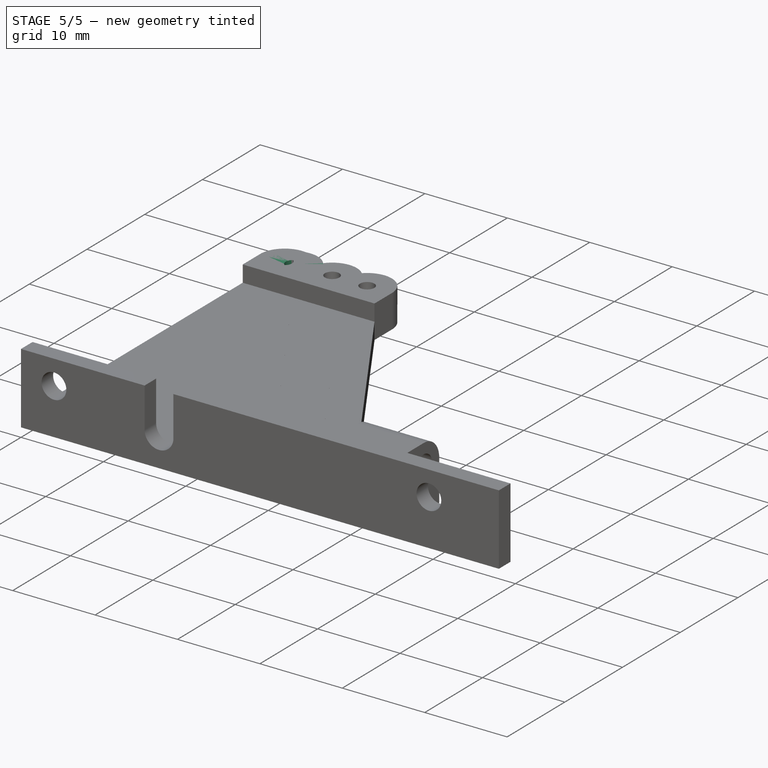
[diagram: stage 5 of 5 — iso view after this stage's code; geometry added in this stage tinted green]
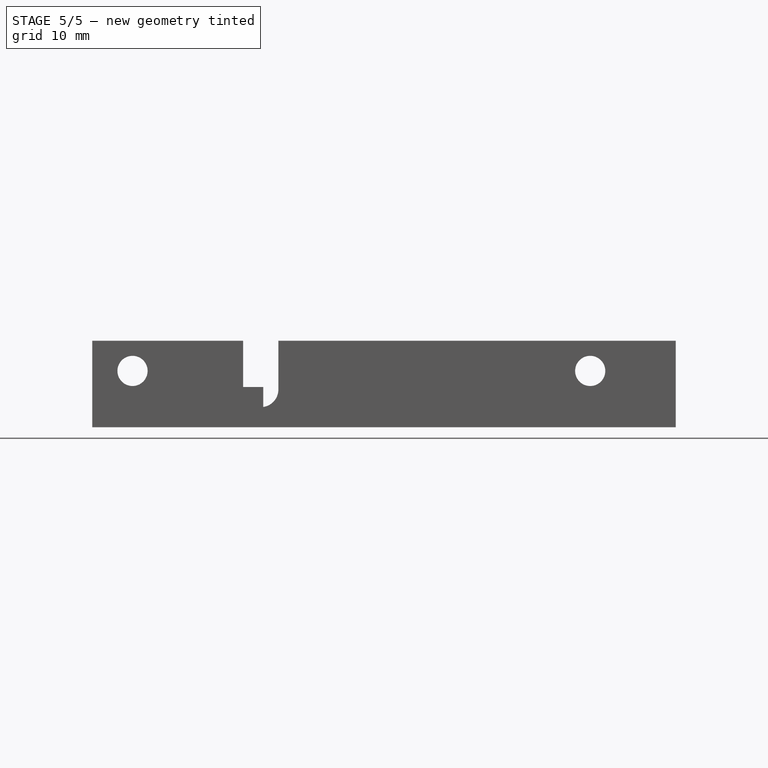
[diagram: stage 5 of 5 — front view after this stage's code; geometry added in this stage tinted green]
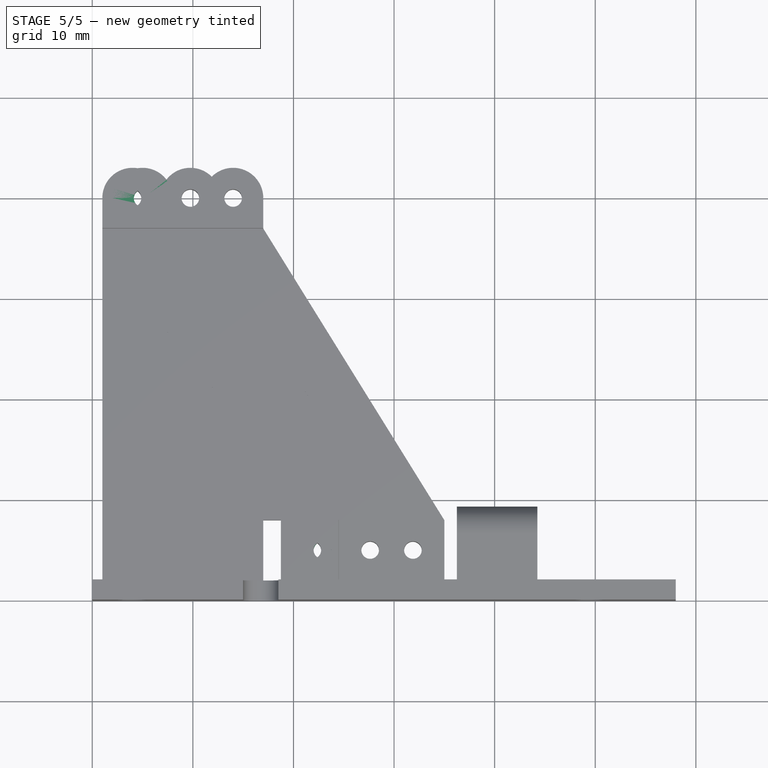
[diagram: stage 5 of 5 — top view after this stage's code; geometry added in this stage tinted green]
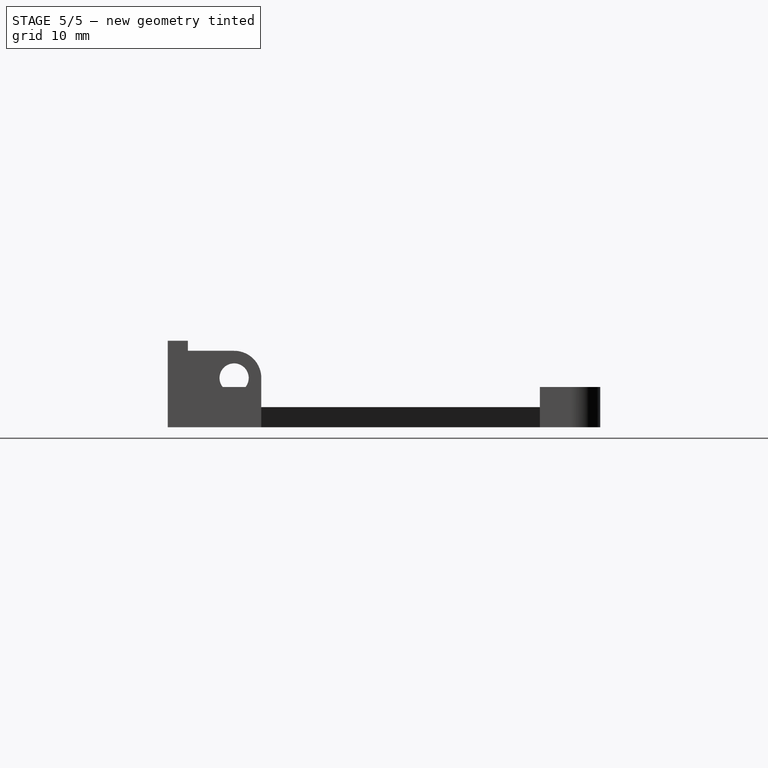
[diagram: stage 5 of 5 — right view after this stage's code; geometry added in this stage tinted green]
FEATURE [Sketcher::SketchObject] Sketch007
  ArcFitTolerance = 1e-06
  AttachmentSupport = -> [Pad003]
  ExternalGeometry = -> [Pad003]
  FullyConstrained = true
  MakeInternals = false
  MapMode = 5
  Placement = pos=(0,0,2) rot=(0,0,1;0rad)
  sketch-geometry (8):
    g0: LineSegment StartX=8 StartY=37 StartZ=0 EndX=2 EndY=37 EndZ=0
    g1: LineSegment StartX=2 StartY=37 StartZ=0 EndX=2 EndY=40 EndZ=0
    g2: LineSegment StartX=8 StartY=37 StartZ=0 EndX=8 EndY=40 EndZ=0
    g3: ArcOfCircle CenterX=5 CenterY=40 CenterZ=0 NormalX=0 NormalY=0 NormalZ=1 AngleXU=0 Radius=3 StartAngle=-9e-16 EndAngle=3.14158
    g4: LineSegment StartX=19.75 StartY=8 StartZ=0 EndX=19.75 EndY=2 EndZ=0
    g5: LineSegment StartX=19.75 StartY=2 StartZ=0 EndX=26 EndY=2 EndZ=0
    g6: LineSegment StartX=26 StartY=2 StartZ=0 EndX=26 EndY=8 EndZ=0
    g7: LineSegment StartX=26 StartY=8 StartZ=0 EndX=19.75 EndY=8 EndZ=0
  constraints (20):
    c: Coincident(g0,g-4)
    c: PointOnObject(g0,g-3)
    c: Horizontal(g0)
    c: Coincident(g1,g0)
    c: PointOnObject(g1,g-3)
    c: Coincident(g2,g0)
    c: PointOnObject(g2,g-4)
    c: Coincident(g3,g1)
    c: Symmetric(g-3,g0,g3)
    c: Tangent(g3,g2) = -1.5708
    c: Coincident(g4,g5)
    c: Coincident(g5,g6)
    c: Coincident(g6,g7)
    c: Coincident(g7,g4)
    c: Vertical(g4)
    c: Vertical(g6)
    c: Horizontal(g5)
    c: Horizontal(g7)
    c: Coincident(g4,g-5)
    c: Coincident(g5,g-6)
FEATURE [PartDesign::Pad] Pad004
  BaseFeature = -> Pad003
  Direction = (0,0,1)
  Length = 2
  Length2 = 10
  Profile = -> Sketch007
  ReferenceAxis = -> Sketch007 [N_Axis]
  Refine = true
  Suppressed = false
  Type = 0
FEATURE [PartDesign::ShapeBinder] ShapeBinder001
  Support = -> [Pad004]
  TraceSupport = false
FEATURE [PartDesign::Pocket] Pocket004
  BaseFeature = -> Pad004
  Direction = (0,0,-1)
  Length = 5
  Length2 = 5
  Profile = -> ShapeBinder001
  Refine = true
  Suppressed = false
  Type = 1
FEATURE [Sketcher::SketchObject] Sketch008
  ArcFitTolerance = 1e-06
  AttachmentSupport = -> [Pocket004]
  ExternalGeometry = -> [Pocket004]
  FullyConstrained = true
  MakeInternals = false
  MapMode = 5
  Placement = pos=(0,0,4) rot=(0,0,1;0rad)
  sketch-geometry (2):
    g0: Circle CenterX=5 CenterY=40 CenterZ=0 NormalX=0 NormalY=0 NormalZ=1 AngleXU=0 Radius=0.875
    g1: Circle CenterX=22.875 CenterY=5 CenterZ=0 NormalX=0 NormalY=0 NormalZ=1 AngleXU=0 Radius=0.875
  constraints (4):
    c: Coincident(g0,g-3)
    c: Symmetric(g-4,g-5,g1)
    c: Equal(g0,g1)
    c: Diameter(g1) = 1.75
FEATURE [PartDesign::Pocket] Pocket005
  BaseFeature = -> Pocket004
  Direction = (0,0,-1)
  Length = 5
  Length2 = 5
  Profile = -> Sketch008
  ReferenceAxis = -> Sketch008 [N_Axis]
  Refine = true
  Suppressed = false
  Type = 1
FEATURE [Sketcher::SketchObject] Sketch009
  ArcFitTolerance = 1e-06
  AttachmentSupport = -> [Pocket005]
  ExternalGeometry = -> [Pocket005]
  FullyConstrained = true
  MakeInternals = false
  MapMode = 5
  Placement = pos=(0,0,2) rot=(0,0,1;0rad)
  sketch-geometry (4):
    g0: LineSegment StartX=58 StartY=2 StartZ=0 EndX=0 EndY=2 EndZ=0
    g1: LineSegment StartX=0 StartY=2 StartZ=0 EndX=0 EndY=0 EndZ=0
    g2: LineSegment StartX=0 StartY=0 StartZ=0 EndX=58 EndY=0 EndZ=0
    g3: LineSegment StartX=58 StartY=0 StartZ=0 EndX=58 EndY=2 EndZ=0
  constraints (10):
    c: Coincident(g0,g1)
    c: Coincident(g1,g2)
    c: Coincident(g2,g3)
    c: Coincident(g3,g0)
    c: Horizontal(g0)
    c: Horizontal(g2)
    c: Vertical(g1)
    c: Vertical(g3)
    c: Coincident(g1,g-1)
    c: Coincident(g0,g-3)
FEATURE [PartDesign::Pad] Pad005
  BaseFeature = -> Pocket005
  Direction = (0,0,1)
  Length = 6.6
  Length2 = 10
  Profile = -> Sketch009
  ReferenceAxis = -> Sketch009 [N_Axis]
  Refine = true
  Suppressed = false
  Type = 0
FEATURE [Sketcher::SketchObject] Sketch010
  ArcFitTolerance = 1e-06
  AttachmentSupport = -> [Pad005]
  ExternalGeometry = -> [Pad005]
  FullyConstrained = true
  MakeInternals = false
  MapMode = 5
  Placement = pos=(0,0,0) rot=(1,0,0;1.5708rad)
  sketch-geometry (15):
    g0: LineSegment [constr] StartX=4 StartY=8.6 StartZ=0 EndX=4 EndY=5.6 EndZ=0
    g1: LineSegment [constr] StartX=4 StartY=5.6 StartZ=0 EndX=0 EndY=5.6 EndZ=0
    g2: Circle CenterX=4 CenterY=5.6 CenterZ=0 NormalX=0 NormalY=0 NormalZ=1 AngleXU=0 Radius=1.5
    g3: LineSegment [constr] StartX=0 StartY=8.6 StartZ=0 EndX=15 EndY=8.6 EndZ=0
    g4: LineSegment StartX=15 StartY=8.6 StartZ=0 EndX=18.5 EndY=8.6 EndZ=0
    g5: LineSegment StartX=15 StartY=8.6 StartZ=0 EndX=15 EndY=3.75 EndZ=0
    g6: LineSegment StartX=18.5 StartY=8.6 StartZ=0 EndX=18.5 EndY=3.75 EndZ=0
    g7: ArcOfCircle CenterX=16.75 CenterY=3.75 CenterZ=0 NormalX=0 NormalY=0 NormalZ=1 AngleXU=0 Radius=1.75 StartAngle=3.14159 EndAngle=6.28319
    g8: LineSegment [constr] StartX=16.75 StartY=2 StartZ=0 EndX=16.75 EndY=0 EndZ=0
    g9: LineSegment [constr] StartX=0 StartY=0 StartZ=0 EndX=58 EndY=0 EndZ=0
    g10: LineSegment [constr] StartX=4 StartY=5.6 StartZ=0 EndX=49.5 EndY=5.6 EndZ=0
    g11: LineSegment [constr] StartX=49.5 StartY=5.6 StartZ=0 EndX=58 EndY=5.6 EndZ=0
    g12: Circle CenterX=49.5 CenterY=5.6 CenterZ=0 NormalX=0 NormalY=0 NormalZ=1 AngleXU=0 Radius=1.5
    g13: LineSegment [constr] StartX=4 StartY=5.6 StartZ=0 EndX=27 EndY=5.6 EndZ=0
    g14: Circle CenterX=27 CenterY=5.6 CenterZ=0 NormalX=0 NormalY=0 NormalZ=1 AngleXU=0 Radius=1.5
  constraints (41):
    c: Distance(g0) = 3
    c: Vertical(g0)
    c: Coincident(g1,g0)
    c: PointOnObject(g1,g-3)
    c: Horizontal(g1)
    c: Distance(g1) = 4
    c: Coincident(g2,g0)
    c: Diameter(g2) = 3
    c: Coincident(g3,g-3)
    c: Distance(g4) = 3.5
    c: Coincident(g4,g3)
    c: Coincident(g5,g3)
    c: Vertical(g5)
    c: Coincident(g6,g4)
    c: Vertical(g6)
    c: Tangent(g7,g5) = -1.5708
    c: Tangent(g7,g6) = 1.5708
    c: PointOnObject(g8,g7)
    c: Vertical(g8)
    c: Coincident(g9,g-1)
    c: Coincident(g9,g-4)
    c: PointOnObject(g8,g9)
    c: Perpendicular(g7,g8)
    c: Distance(g8) = 2
    c: Distance(g3) = 15
    c: PointOnObject(g0,g3)
    c: Horizontal(g3)
    c: Horizontal(g4)
    c: Coincident(g10,g0)
    c: Horizontal(g10)
    c: Distance(g11) = 8.5
    c: Coincident(g11,g10)
    c: PointOnObject(g11,g-4)
    c: Horizontal(g11)
    c: Coincident(g12,g10)
    c: Equal(g12,g2)
    c: Distance(g13) = 23
    c: Coincident(g13,g0)
    c: PointOnObject(g13,g10)
    c: Coincident(g14,g13)
    c: Equal(g14,g2)
FEATURE [PartDesign::Pocket] Pocket006
  BaseFeature = -> Pad005
  Direction = (0,1,-2e-16)
  Length = 5
  Length2 = 5
  Profile = -> Sketch010
  ReferenceAxis = -> Sketch010 [N_Axis]
  Refine = true
  Suppressed = false
  Type = 1
FEATURE [Sketcher::SketchObject] Sketch011
  ArcFitTolerance = 1e-06
  AttachmentSupport = -> [Pocket006]
  ExternalGeometry = -> [Pocket006]
  FullyConstrained = true
  MakeInternals = false
  MapMode = 5
  Placement = pos=(0,2,0) rot=(0,0.707107,0.707107;3.14159rad)
  sketch-geometry (1):
    g0: Circle CenterX=-27 CenterY=5.6 CenterZ=0 NormalX=0 NormalY=0 NormalZ=1 AngleXU=0 Radius=3
  constraints (2):
    c: Coincident(g0,g-3)
    c: Diameter(g0) = 6
FEATURE [PartDesign::Pocket] Pocket007
  BaseFeature = -> Pocket006
  Direction = (0,-1,2e-16)
  Length = 5
  Length2 = 5
  Profile = -> Sketch011
  ReferenceAxis = -> Sketch011 [N_Axis]
  Refine = true
  Reversed = true
  Suppressed = false
  Type = 1
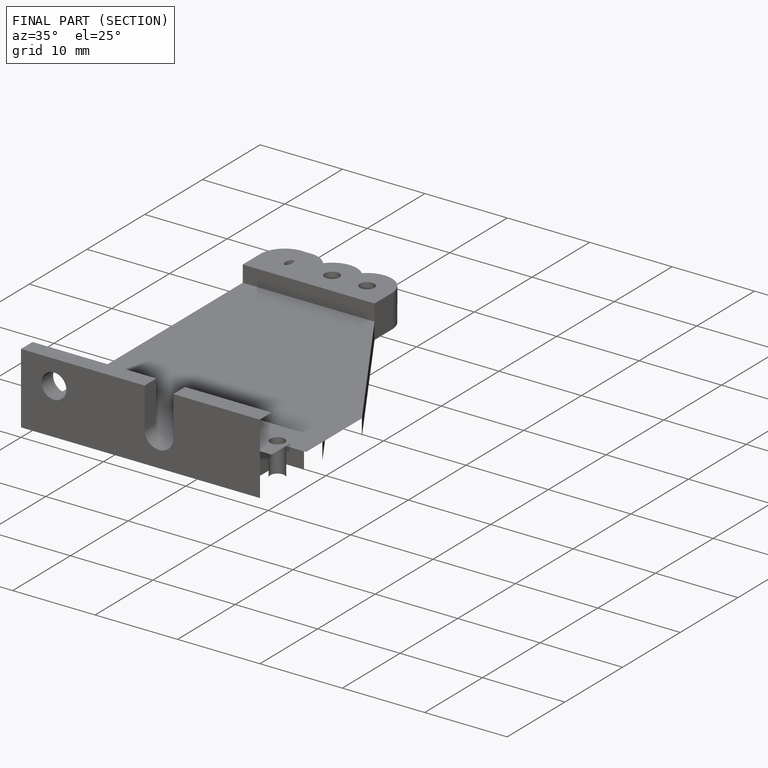
[diagram: finished part — half-section view (interior)]
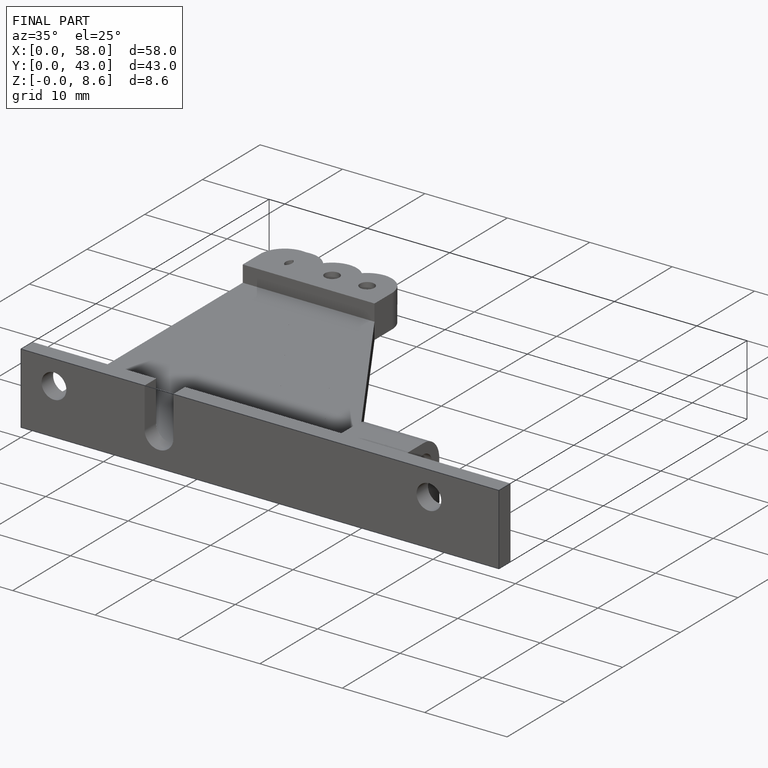
[diagram: finished part — iso view with bounding-box wireframe]
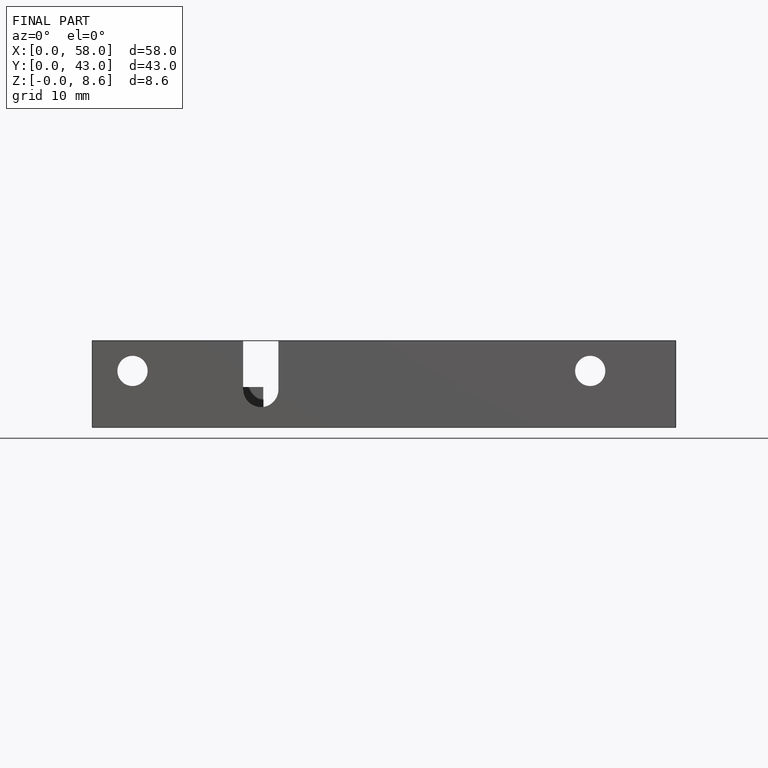
[diagram: finished part — front view with bounding-box wireframe]
